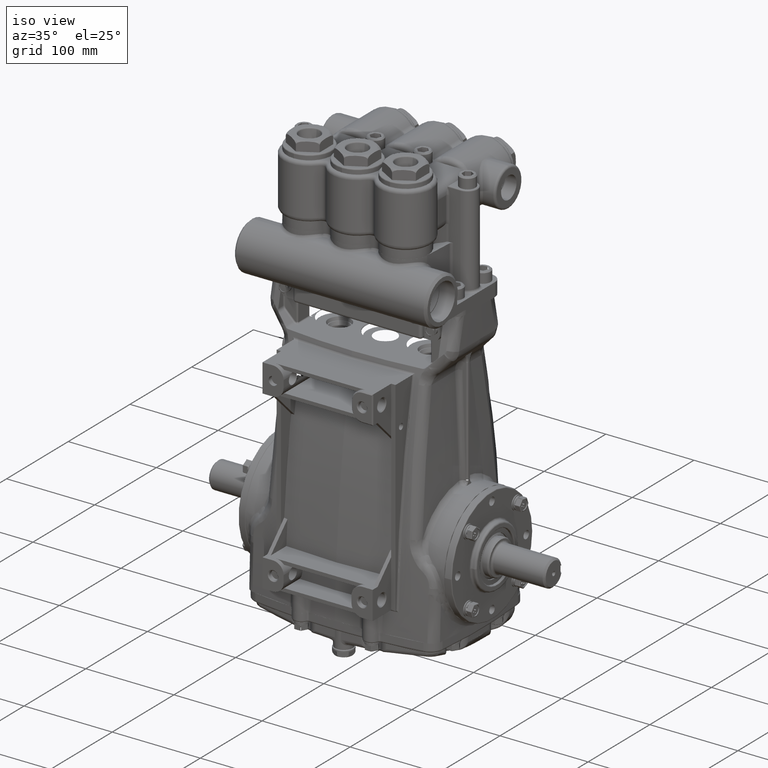
[diagram: clean part render]
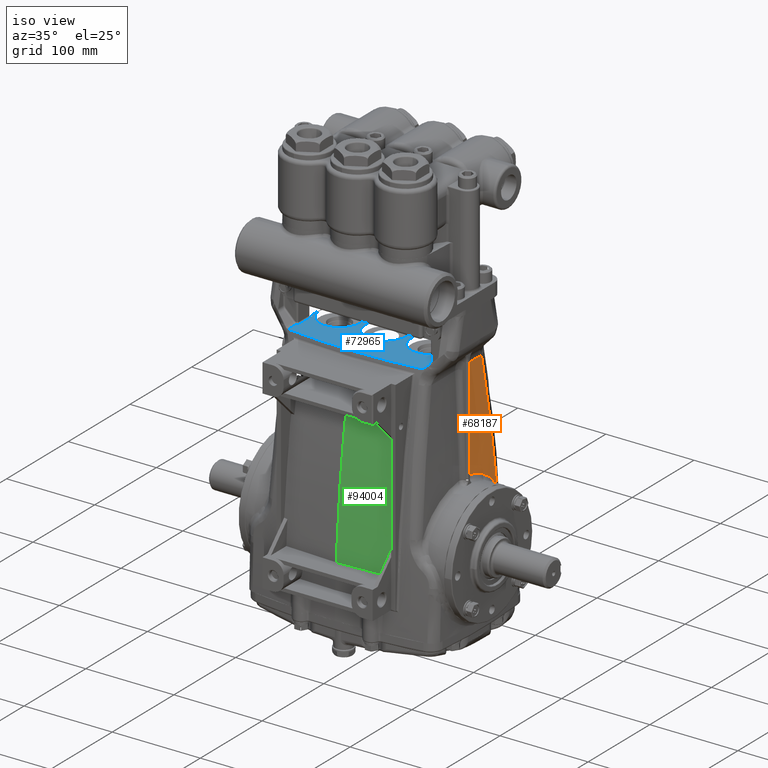
[diagram: same view with three faces highlighted in distinct colors, each labeled with its STEP entity id]
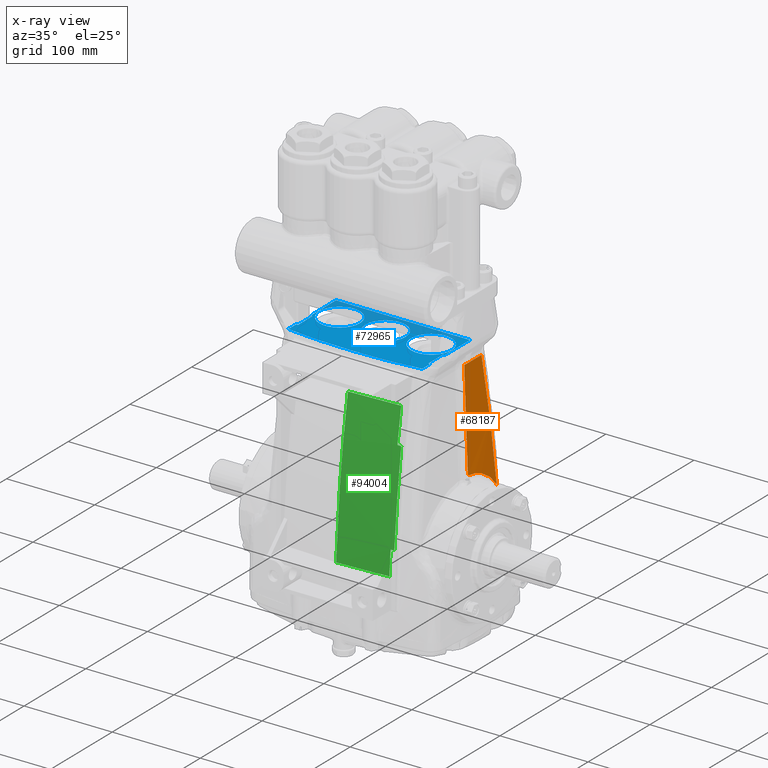
[diagram: x-ray of the same camera — body ghosted, the three highlighted faces saturated]
A machine part, iso view with three faces highlighted in distinct colors.
The next image is the same camera in x-ray (body ghosted, the three faces saturated) — at least one of them is partly hidden behind the body in this view.
Their STEP definitions:

[orange] entity #68187 — the highlighted face is a freeform B-spline surface patch.
#657 = CARTESIAN_POINT ( 'NONE',  ( 3.349694606955345488, 1.975843327882857769, 3.944405702662852509 ) ) ;
#806 = CARTESIAN_POINT ( 'NONE',  ( 3.318307231331997009, 0.2927187559611116319, 7.049093553887074037 ) ) ;
#1058 = VERTEX_POINT ( 'NONE', #60892 ) ;
#1593 = CARTESIAN_POINT ( 'NONE',  ( 3.281815810567933145, 1.266366989174206203, 7.147771232802056396 ) ) ;
#2824 = CARTESIAN_POINT ( 'NONE',  ( 3.490813648293963123, 0.2047844914236372216, 2.467191601049868233 ) ) ;
#3028 = CARTESIAN_POINT ( 'NONE',  ( 3.269692321802373680, 1.460513298219533684, 7.135318008206841256 ) ) ;
#3321 = CARTESIAN_POINT ( 'NONE',  ( 3.477706924474778916, 0.2927391590351144934, 2.768504190964697909 ) ) ;
#3326 = CARTESIAN_POINT ( 'NONE',  ( 3.582677165354325233, -0.2504330642496530035, 0.000000000000000000 ) ) ;
#3812 = CARTESIAN_POINT ( 'NONE',  ( 3.077482475587764554, -2.511274253650753963, 9.921259842519685179 ) ) ;
#4286 = CARTESIAN_POINT ( 'NONE',  ( 3.433988088125543126, 1.773042593103885567, 2.138417196117650576 ) ) ;
#4294 = CARTESIAN_POINT ( 'NONE',  ( 3.361718471530574792, -0.6071899308826437247, 5.774278215223129784 ) ) ;
#4780 = CARTESIAN_POINT ( 'NONE',  ( 3.427231623504842339, 1.914841288646969009, 2.010681869798234267 ) ) ;
#5284 = CARTESIAN_POINT ( 'NONE',  ( 3.437444456445687635, 1.698723534720699924, 2.198762342912546242 ) ) ;
#5494 = EDGE_LOOP ( 'NONE', ( #71016, #15726, #75249, #44194 ) ) ;
#8279 = CARTESIAN_POINT ( 'NONE',  ( 2.962623630077036108, 3.346456692913390096, 9.921259842519685179 ) ) ;
#8506 = CARTESIAN_POINT ( 'NONE',  ( 3.292354361583460065, 1.633310939118002514, 6.227655735173276419 ) ) ;
#9221 = CARTESIAN_POINT ( 'NONE',  ( 3.370182128241528741, 3.116621155005694366, 0.000000000000000000 ) ) ;
#10670 = CARTESIAN_POINT ( 'NONE',  ( 3.444332865596592796, 1.542042410792554552, 2.311344156697051400 ) ) ;
#10675 = CARTESIAN_POINT ( 'NONE',  ( 3.576859146580936066, -0.6046244503895895628, 0.000000000000000000 ) ) ;
#11182 = CARTESIAN_POINT ( 'NONE',  ( 3.490813648293961791, -0.2504405389293088424, 2.467191601049866012 ) ) ;
#11670 = CARTESIAN_POINT ( 'NONE',  ( 3.118770955066280326, -3.346456692913386544, 5.774278215223096922 ) ) ;
#12159 = CARTESIAN_POINT ( 'NONE',  ( 3.109258477031473955, -2.508475066898988803, 9.081364829396324723 ) ) ;
#12660 = CARTESIAN_POINT ( 'NONE',  ( 3.331099628569671012, 1.345986631178405224, 5.774278215223075605 ) ) ;
#12920 = CARTESIAN_POINT ( 'NONE',  ( 3.412023746535997937, 2.228146809416287066, 1.648877996829962944 ) ) ;
#15726 = ORIENTED_EDGE ( 'NONE', *, *, #17676, .T. ) ;
#15902 = CARTESIAN_POINT ( 'NONE',  ( 3.412023746535997937, 2.228146809416287066, 1.648877996829962944 ) ) ;
#16149 = CARTESIAN_POINT ( 'NONE',  ( 3.431648744459313782, 2.652526038801615194, 0.000000000000000000 ) ) ;
#17676 = EDGE_CURVE ( 'NONE', #1058, #26330, #38402, .T. ) ;
#18071 = CARTESIAN_POINT ( 'NONE',  ( 3.582677165354324789, 0.2047781824377178650, 0.000000000000000000 ) ) ;
#18565 = CARTESIAN_POINT ( 'NONE',  ( 3.238563372422959219, -0.6088273537724060436, 9.081364829396299854 ) ) ;
#19060 = CARTESIAN_POINT ( 'NONE',  ( 3.304246077622467581, -1.737775380214960919, 5.774278215223091593 ) ) ;
#19555 = CARTESIAN_POINT ( 'NONE',  ( 3.213224828743415085, 2.668767787971791261, 5.774278215223104915 ) ) ;
#20031 = CARTESIAN_POINT ( 'NONE',  ( 3.088002546773583656, 2.678613266805366599, 9.081364829396360250 ) ) ;
#21480 = CARTESIAN_POINT ( 'NONE',  ( 3.328073829250098647, 0.2927196410302269070, 6.786808136390652280 ) ) ;
#21807 = CARTESIAN_POINT ( 'NONE',  ( 3.269692321802373680, 1.460513298219533684, 7.135318008206841256 ) ) ;
#23502 = CARTESIAN_POINT ( 'NONE',  ( 3.152032960981228538, 3.124122137602491467, 5.774278215223089816 ) ) ;
#25158 = CARTESIAN_POINT ( 'NONE',  ( 3.291528827503460430, 1.071831288738920085, 7.157747510188548823 ) ) ;
#25456 = CARTESIAN_POINT ( 'NONE',  ( 3.403341269119732893, 2.024586169240023104, 2.467191601049906868 ) ) ;
#25933 = CARTESIAN_POINT ( 'NONE',  ( 3.183714716260146016, -1.187087684709286384, 9.921259842519649652 ) ) ;
#26330 = VERTEX_POINT ( 'NONE', #62928 ) ;
#26416 = CARTESIAN_POINT ( 'NONE',  ( 3.576220235460202623, 0.6835134000462050885, 0.000000000000000000 ) ) ;
#26915 = CARTESIAN_POINT ( 'NONE',  ( 3.476855029519029916, 0.3884509603138865952, 2.758237625161902962 ) ) ;
#26923 = CARTESIAN_POINT ( 'NONE',  ( 3.359373924467381478, -2.487234547113272409, 2.467191601049866012 ) ) ;
#27409 = CARTESIAN_POINT ( 'NONE',  ( 3.338676521992537616, -1.180206620310735088, 5.774278215223129784 ) ) ;
#27877 = CARTESIAN_POINT ( 'NONE',  ( 3.412023746535997937, 2.228146809416287066, 1.648877996829962944 ) ) ;
#27950 = VERTEX_POINT ( 'NONE', #92151 ) ;
#29649 = CARTESIAN_POINT ( 'NONE',  ( 3.361618648533276410, 2.034251877551805698, 3.486079300572620276 ) ) ;
#30768 = CARTESIAN_POINT ( 'NONE',  ( 3.447362342897620557, 0.2927343330170829594, 3.583368001503166589 ) ) ;
#31342 = CARTESIAN_POINT ( 'NONE',  ( 3.336131691620399131, 3.346456692913390540, 0.000000000000000000 ) ) ;
#32323 = FACE_OUTER_BOUND ( 'NONE', #5494, .T. ) ;
#32801 = CARTESIAN_POINT ( 'NONE',  ( 3.007765121776432959, -3.046796509488089999, 9.921259842519685179 ) ) ;
#33311 = CARTESIAN_POINT ( 'NONE',  ( 3.484935403604872750, -0.6057206102366218259, 2.467191601049883332 ) ) ;
#33787 = CARTESIAN_POINT ( 'NONE',  ( 3.289826261678808539, -3.033423029685906602, 2.467191601049866012 ) ) ;
#34266 = CARTESIAN_POINT ( 'NONE',  ( 3.148527226247458621, -1.749494867770716278, 9.921259842519683403 ) ) ;
#34776 = CARTESIAN_POINT ( 'NONE',  ( 3.462199748655711229, -1.175317486001221434, 2.467191601049883332 ) ) ;
#35258 = CARTESIAN_POINT ( 'NONE',  ( 3.463023286000174394, 1.037108040680475796, 2.582588093994256706 ) ) ;
#36698 = CARTESIAN_POINT ( 'NONE',  ( 3.477706924474778916, 0.2927391590351144934, 2.768504190964697909 ) ) ;
#38237 = CARTESIAN_POINT ( 'NONE',  ( 3.276972938593945894, 3.119826120297053418, 2.467191601049866012 ) ) ;
#38402 = B_SPLINE_CURVE_WITH_KNOTS ( 'NONE', 3,
 ( #83321, #806, #44993, #21480, #81881, #89238, #51904, #67619, #30768, #36698 ),
 .UNSPECIFIED., .F., .F.,
 ( 4, 3, 3, 4 ),
 ( 0.000000000000000000, 0.01000000000000030378, 0.05000000000002784856, 0.1121356603331099822 ),
 .UNSPECIFIED. ) ;
#40630 = CARTESIAN_POINT ( 'NONE',  ( 3.361089901118596845, 0.6863738808403515579, 5.774278215223060506 ) ) ;
#41131 = CARTESIAN_POINT ( 'NONE',  ( 3.470213245614027109, 0.7650157390332990026, 2.675867407756602478 ) ) ;
#41139 = CARTESIAN_POINT ( 'NONE',  ( 3.367677444574750822, -0.2504505581807623948, 5.774278215223089816 ) ) ;
#41614 = CARTESIAN_POINT ( 'NONE',  ( 2.994248404758402149, -3.346456692913386544, 9.081364829396326499 ) ) ;
#42604 = CARTESIAN_POINT ( 'NONE',  ( 3.547013876441738489, 1.335291830376295064, 0.000000000000000000 ) ) ;
#43141 = EDGE_CURVE ( 'NONE', #43580, #26330, #57675, .T. ) ;
#43580 = VERTEX_POINT ( 'NONE', #12920 ) ;
#44194 = ORIENTED_EDGE ( 'NONE', *, *, #52225, .F. ) ;
#44379 = CARTESIAN_POINT ( 'NONE',  ( 3.398877834969281864, 2.186773139856743153, 2.108903812612397566 ) ) ;
#44993 = CARTESIAN_POINT ( 'NONE',  ( 3.323190520193768815, 0.2927191873903027264, 6.917950844762834173 ) ) ;
#47990 = CARTESIAN_POINT ( 'NONE',  ( 3.475593993287876771, 0.4834058381449323760, 2.742974295274423380 ) ) ;
#47995 = CARTESIAN_POINT ( 'NONE',  ( 3.244541240855531861, -0.2504609453016973797, 9.081364829396326499 ) ) ;
#48483 = CARTESIAN_POINT ( 'NONE',  ( 3.520889234658918898, -1.723196813737145172, 0.000000000000000000 ) ) ;
#48995 = CARTESIAN_POINT ( 'NONE',  ( 3.383163826581795597, -3.028996562869355369, 0.000000000000000000 ) ) ;
#49477 = CARTESIAN_POINT ( 'NONE',  ( 3.447712467600018371, 1.461303277406913459, 2.363930898049619422 ) ) ;
#49485 = CARTESIAN_POINT ( 'NONE',  ( 3.213268554196682558, -0.2504635833006649825, 9.921259842519685179 ) ) ;
#49960 = CARTESIAN_POINT ( 'NONE',  ( 3.423931368744911552, 1.982320691899027931, 1.943291457284399115 ) ) ;
#49966 = CARTESIAN_POINT ( 'NONE',  ( 3.122716302038380576, 2.047084650748415058, 9.921259842519647876 ) ) ;
#51904 = CARTESIAN_POINT ( 'NONE',  ( 3.386674433925234595, 0.2927260709607487077, 5.213095669291894829 ) ) ;
#52181 = B_SPLINE_SURFACE_WITH_KNOTS ( 'NONE', 3, 3, ( 
 ( #31342, #53456, #62264, #76065, #8279 ),
 ( #9221, #38237, #23502, #61304, #83430 ),
 ( #16149, #93191, #19555, #20031, #71592 ),
 ( #64736, #25456, #64210, #78480, #49966 ),
 ( #42604, #70609, #12660, #55392, #93673 ),
 ( #26416, #71104, #40630, #86831, #77984 ),
 ( #18071, #2824, #78976, #85364, #94677 ),
 ( #3326, #11182, #41139, #47995, #49485 ),
 ( #10675, #33311, #4294, #18565, #63242 ),
 ( #79934, #34776, #27409, #79459, #25933 ),
 ( #48483, #55875, #19060, #85843, #34266 ),
 ( #94174, #26923, #57359, #12159, #3812 ),
 ( #48995, #33787, #87318, #63727, #32801 ),
 ( #56361, #86334, #11670, #41614, #56876 ) ),
 .UNSPECIFIED., .F., .F., .F.,
 ( 4, 1, 1, 1, 1, 2, 1, 1, 1, 1, 4 ),
 ( 4, 1, 4 ),
 ( 0.1586431789111423796, 0.1929639621870227195, 0.2287681097253262408, 0.2560747880780795960, 0.2983581534718249273, 0.3296355460450030028, 0.3678860930050805722, 0.3841297952030450213, 0.4172474699368756701, 0.4532222425079813766, 0.5006279131788632375 ),
 ( 0.000000000000000000, 0.7460317460317461569, 1.000000000000000000 ),
 .UNSPECIFIED. ) ;
#52225 = EDGE_CURVE ( 'NONE', #27950, #43580, #55260, .T. ) ;
#53456 = CARTESIAN_POINT ( 'NONE',  ( 3.243259376910911929, 3.346456692913388764, 2.467191601049868233 ) ) ;
#55062 = B_SPLINE_CURVE_WITH_KNOTS ( 'NONE', 3,
 ( #91969, #77247, #76268, #25158, #1593, #3028 ),
 .UNSPECIFIED., .F., .F.,
 ( 4, 2, 4 ),
 ( 0.004934148018106192940, 0.01978804455404170604, 0.03464194108997721566 ),
 .UNSPECIFIED. ) ;
#55260 = B_SPLINE_CURVE_WITH_KNOTS ( 'NONE', 3,
 ( #21807, #8506, #81727, #657, #29649, #90055, #44379, #15902 ),
 .UNSPECIFIED., .F., .F.,
 ( 4, 2, 2, 4 ),
 ( 8.441528768080324345E-17, 0.07039193455788995968, 0.1055879018368349187, 0.1407838691157798916 ),
 .UNSPECIFIED. ) ;
#55392 = CARTESIAN_POINT ( 'NONE',  ( 3.207397325007263156, 1.352893229288899324, 9.081364829396356697 ) ) ;
#55875 = CARTESIAN_POINT ( 'NONE',  ( 3.428323522106980548, -1.729425837595848225, 2.467191601049866900 ) ) ;
#56353 = CARTESIAN_POINT ( 'NONE',  ( 3.442610063453559022, 1.581952432225586680, 2.283835229760922125 ) ) ;
#56361 = CARTESIAN_POINT ( 'NONE',  ( 3.336131691620401796, -3.346456692913386544, 0.000000000000000000 ) ) ;
#56876 = CARTESIAN_POINT ( 'NONE',  ( 2.962623630077036108, -3.346456692913386100, 9.921259842519685179 ) ) ;
#57359 = CARTESIAN_POINT ( 'NONE',  ( 3.234376482716079693, -2.497453269063911740, 5.774278215223089816 ) ) ;
#57675 = B_SPLINE_CURVE_WITH_KNOTS ( 'NONE', 3,
 ( #27877, #72583, #87790, #49960, #4780, #4286, #5284, #56353, #10670, #49477, #57823, #78970, #64203, #35258, #79928, #93666, #41131, #71098, #63236, #47990, #26915, #3321 ),
 .UNSPECIFIED., .F., .F.,
 ( 4, 2, 2, 2, 2, 2, 2, 2, 2, 2, 4 ),
 ( 9.813077866773594792E-18, 0.007270669729715710169, 0.01454133945943141167, 0.02181200918914711143, 0.02544734405400496044, 0.02908267891886281292, 0.03635334864857851789, 0.04362401837829423673, 0.04725935324315208574, 0.05089468810800994863, 0.05816535783772566054 ),
 .UNSPECIFIED. ) ;
#57823 = CARTESIAN_POINT ( 'NONE',  ( 3.449372806653788537, 1.420399891638339573, 2.389070443333108251 ) ) ;
#60892 = CARTESIAN_POINT ( 'NONE',  ( 3.313423963808419082, 0.2927183479872371707, 7.180236263805937824 ) ) ;
#61304 = CARTESIAN_POINT ( 'NONE',  ( 3.027047486387744346, 3.128417886226819267, 9.081364829396330052 ) ) ;
#62264 = CARTESIAN_POINT ( 'NONE',  ( 3.118770955066280326, 3.346456692913385655, 5.774278215223095145 ) ) ;
#62928 = CARTESIAN_POINT ( 'NONE',  ( 3.477706924474778916, 0.2927391590351144934, 2.768504190964697909 ) ) ;
#63236 = CARTESIAN_POINT ( 'NONE',  ( 3.473135159087525459, 0.6247011727322953067, 2.712569757845848084 ) ) ;
#63242 = CARTESIAN_POINT ( 'NONE',  ( 3.207285886935310693, -0.6092432072047266889, 9.921259842519644323 ) ) ;
#63727 = CARTESIAN_POINT ( 'NONE',  ( 3.039552278195602586, -3.045289647581233439, 9.081364829396326499 ) ) ;
#64203 = CARTESIAN_POINT ( 'NONE',  ( 3.457319253985625451, 1.211163671208432158, 2.504574368776081084 ) ) ;
#64210 = CARTESIAN_POINT ( 'NONE',  ( 3.278895081363039754, 2.034007160076365839, 5.774278215223185740 ) ) ;
#64736 = CARTESIAN_POINT ( 'NONE',  ( 3.496182075858852656, 2.017557810997037571, 0.000000000000000000 ) ) ;
#67619 = CARTESIAN_POINT ( 'NONE',  ( 3.417018087079791933, 0.2927298696226943719, 4.398231824175141469 ) ) ;
#68187 = ADVANCED_FACE ( 'NONE', ( #32323 ), #52181, .F. ) ;
#70609 = CARTESIAN_POINT ( 'NONE',  ( 3.454759606896400381, 1.339861427082650991, 2.467191601049859795 ) ) ;
#71016 = ORIENTED_EDGE ( 'NONE', *, *, #88141, .F. ) ;
#71098 = CARTESIAN_POINT ( 'NONE',  ( 3.472220718430306441, 0.6716334063986347802, 2.701174340641883997 ) ) ;
#71104 = CARTESIAN_POINT ( 'NONE',  ( 3.484300910786971794, 0.6847356054764313082, 2.467191601049853578 ) ) ;
#71592 = CARTESIAN_POINT ( 'NONE',  ( 3.056200062463784839, 2.681113705874210940, 9.921259842519724259 ) ) ;
#72583 = CARTESIAN_POINT ( 'NONE',  ( 3.414713312866757278, 2.171058895739299555, 1.726990411664675484 ) ) ;
#75249 = ORIENTED_EDGE ( 'NONE', *, *, #43141, .F. ) ;
#76065 = CARTESIAN_POINT ( 'NONE',  ( 2.994248404758402149, 3.346456692913390096, 9.081364829396326499 ) ) ;
#76268 = CARTESIAN_POINT ( 'NONE',  ( 3.306111735994824663, 0.6824548773842041838, 7.172726748642133110 ) ) ;
#77247 = CARTESIAN_POINT ( 'NONE',  ( 3.310983054772468126, 0.4876467954302492469, 7.177729713678575152 ) ) ;
#77984 = CARTESIAN_POINT ( 'NONE',  ( 3.206671794739125225, 0.6886280765714566376, 9.921259842519729588 ) ) ;
#78480 = CARTESIAN_POINT ( 'NONE',  ( 3.154347447218058598, 2.044436045042683947, 9.081364829396314065 ) ) ;
#78970 = CARTESIAN_POINT ( 'NONE',  ( 3.454235604052612096, 1.296115292389044882, 2.461088219710865665 ) ) ;
#78976 = CARTESIAN_POINT ( 'NONE',  ( 3.367677444574754375, 0.2047929481494440151, 5.774278215223095145 ) ) ;
#79459 = CARTESIAN_POINT ( 'NONE',  ( 3.215099385775566976, -1.185694051413377359, 9.081364829396305183 ) ) ;
#79928 = CARTESIAN_POINT ( 'NONE',  ( 3.465643896110101707, 0.9480041649882693378, 2.617115943367958053 ) ) ;
#79934 = CARTESIAN_POINT ( 'NONE',  ( 3.554351997118713413, -1.171670036595711117, 0.000000000000000000 ) ) ;
#81727 = CARTESIAN_POINT ( 'NONE',  ( 3.314677885994496087, 1.783796561539602976, 5.316465458283545331 ) ) ;
#81881 = CARTESIAN_POINT ( 'NONE',  ( 3.347607065475425081, 0.2927214555899236292, 6.262237302901752400 ) ) ;
#83321 = CARTESIAN_POINT ( 'NONE',  ( 3.313423963808419082, 0.2927183479872371707, 7.180236263805937824 ) ) ;
#83430 = CARTESIAN_POINT ( 'NONE',  ( 2.995305143633843148, 3.129508870004426235, 9.921259842519690508 ) ) ;
#85364 = CARTESIAN_POINT ( 'NONE',  ( 3.244541240855535857, 0.2048016856631995064, 9.081364829396326499 ) ) ;
#85843 = CARTESIAN_POINT ( 'NONE',  ( 3.180065221462650360, -1.747121300670816835, 9.081364829396324723 ) ) ;
#86334 = CARTESIAN_POINT ( 'NONE',  ( 3.243259376910913705, -3.346456692913386544, 2.467191601049869121 ) ) ;
#86831 = CARTESIAN_POINT ( 'NONE',  ( 3.237946347929904878, 0.6881715306006001009, 9.081364829396353144 ) ) ;
#87318 = CARTESIAN_POINT ( 'NONE',  ( 3.164714206596082491, -3.039356378822984706, 5.774278215223089816 ) ) ;
#87790 = CARTESIAN_POINT ( 'NONE',  ( 3.417672550041459090, 2.110429115021122737, 1.801445320440802744 ) ) ;
#88141 = EDGE_CURVE ( 'NONE', #1058, #27950, #55062, .T. ) ;
#89238 = CARTESIAN_POINT ( 'NONE',  ( 3.367140624842383634, 0.2927236255618101413, 5.737666481446650479 ) ) ;
#90055 = CARTESIAN_POINT ( 'NONE',  ( 3.386209788244205487, 2.139713064070962734, 2.568349735116830068 ) ) ;
#91969 = CARTESIAN_POINT ( 'NONE',  ( 3.313423963808419082, 0.2927183479872371707, 7.180236263805937824 ) ) ;
#92151 = CARTESIAN_POINT ( 'NONE',  ( 3.269692321802373680, 1.460513298219533684, 7.135318008206841256 ) ) ;
#93191 = CARTESIAN_POINT ( 'NONE',  ( 3.338322162289793393, 2.659465695265236018, 2.467191601049872673 ) ) ;
#93666 = CARTESIAN_POINT ( 'NONE',  ( 3.469126847361452715, 0.8111619379403480767, 2.662039753391358676 ) ) ;
#93673 = CARTESIAN_POINT ( 'NONE',  ( 3.175980866959666749, 1.354647285951881885, 9.921259842519729588 ) ) ;
#94174 = CARTESIAN_POINT ( 'NONE',  ( 3.452625984186607155, -2.479611056134223723, 0.000000000000000000 ) ) ;
#94677 = CARTESIAN_POINT ( 'NONE',  ( 3.213268554196686555, 0.2048039047143119795, 9.921259842519685179 ) ) ;

[blue] entity #72965 — the highlighted planar face has unit normal (0, 0, 1).
#70 = CARTESIAN_POINT ( 'NONE',  ( -2.995267314299841388, 0.8858267716535432879, 7.795279527559055843 ) ) ;
#1165 = ORIENTED_EDGE ( 'NONE', *, *, #7901, .T. ) ;
#1412 = CARTESIAN_POINT ( 'NONE',  ( 2.995267314299840500, 0.8858267716535432879, 7.795279527559055843 ) ) ;
#1473 = VERTEX_POINT ( 'NONE', #64045 ) ;
#1566 = CARTESIAN_POINT ( 'NONE',  ( 1.300353899980418726, -2.079264159697176151, 7.795279527559004329 ) ) ;
#1693 = EDGE_LOOP ( 'NONE', ( #22190, #1165, #34597, #26158, #30923, #64264, #82416, #57336, #13673, #12543, #34409, #84320, #72648 ) ) ;
#1896 = EDGE_CURVE ( 'NONE', #35369, #83401, #33634, .T. ) ;
#2712 = CIRCLE ( 'NONE', #27860, 0.9055118110236217710 ) ;
#3016 = DIRECTION ( 'NONE',  ( 0.000000000000000000, 0.000000000000000000, 1.000000000000000000 ) ) ;
#3090 = CARTESIAN_POINT ( 'NONE',  ( 2.995267314299840500, -1.924090953648351920, 7.795279527559055843 ) ) ;
#3817 = AXIS2_PLACEMENT_3D ( 'NONE', #64421, #3016, #64921 ) ;
#3999 = VERTEX_POINT ( 'NONE', #59151 ) ;
#4067 = LINE ( 'NONE', #41377, #83428 ) ;
#4136 = DIRECTION ( 'NONE',  ( -1.051346764723242652E-16, 0.000000000000000000, 1.000000000000000000 ) ) ;
#4227 = CARTESIAN_POINT ( 'NONE',  ( -3.740157480314960647, -0.4921259842519689620, 7.795279527559055843 ) ) ;
#5605 = ORIENTED_EDGE ( 'NONE', *, *, #32532, .F. ) ;
#6123 = EDGE_CURVE ( 'NONE', #28770, #83045, #2712, .T. ) ;
#6310 = B_SPLINE_CURVE_WITH_KNOTS ( 'NONE', 3,
 ( #9405, #38401, #25128, #45275, #17276, #39371, #1566, #31042, #90951, #54586, #53636, #69345, #8447 ),
 .UNSPECIFIED., .F., .F.,
 ( 4, 1, 1, 1, 1, 1, 1, 1, 1, 1, 4 ),
 ( 0.01705626432255864799, 0.02248800266875476683, 0.03955954306842567048, 0.04920069791684063276, 0.05733757252449689368, 0.05903689102475136868, 0.06795898995396967845, 0.07803381234323830684, 0.08182793238196485464, 0.08760719812659660544, 0.09328233221348881943 ),
 .UNSPECIFIED. ) ;
#7311 = AXIS2_PLACEMENT_3D ( 'NONE', #56439, #21427, #93269 ) ;
#7794 = CARTESIAN_POINT ( 'NONE',  ( -2.913385826771653697, 0.8858267716535432879, 7.795279527559055843 ) ) ;
#7901 = EDGE_CURVE ( 'NONE', #3999, #78525, #4067, .T. ) ;
#7984 = DIRECTION ( 'NONE',  ( 0.000000000000000000, -1.000000000000000000, 0.000000000000000000 ) ) ;
#8069 = CIRCLE ( 'NONE', #84942, 0.9055118110236217710 ) ;
#8278 = EDGE_LOOP ( 'NONE', ( #26581, #33848 ) ) ;
#8447 = CARTESIAN_POINT ( 'NONE',  ( 1.404577764583735402E-17, -2.114775635248775210, 7.795279527559055843 ) ) ;
#8878 = CARTESIAN_POINT ( 'NONE',  ( -1.791694926762982032, -2.047537429967021705, 7.795279527559021204 ) ) ;
#8883 = VERTEX_POINT ( 'NONE', #23290 ) ;
#9321 = CARTESIAN_POINT ( 'NONE',  ( 1.141732283464566233, 1.108932140960201435E-16, 7.795279527559055843 ) ) ;
#9381 = VECTOR ( 'NONE', #38362, 39.37007874015748143 ) ;
#9405 = CARTESIAN_POINT ( 'NONE',  ( 2.995267314299840500, -1.924090953648351920, 7.795279527559055843 ) ) ;
#9859 = CARTESIAN_POINT ( 'NONE',  ( -2.926178195007508975, -1.932925588908157799, 7.795279527559078048 ) ) ;
#10451 = CARTESIAN_POINT ( 'NONE',  ( 2.913385826771653697, -0.4921259842519689065, 7.795279527559055843 ) ) ;
#11111 = LINE ( 'NONE', #4227, #66345 ) ;
#11345 = CARTESIAN_POINT ( 'NONE',  ( -2.913385826771653697, -0.4921259842519689620, 7.795279527559055843 ) ) ;
#11969 = CARTESIAN_POINT ( 'NONE',  ( 1.404577764583735402E-17, -2.114775635248775210, 7.795279527559055843 ) ) ;
#12543 = ORIENTED_EDGE ( 'NONE', *, *, #38072, .T. ) ;
#13139 = VERTEX_POINT ( 'NONE', #10451 ) ;
#13673 = ORIENTED_EDGE ( 'NONE', *, *, #49709, .T. ) ;
#15065 = VECTOR ( 'NONE', #38737, 39.37007874015748143 ) ;
#15197 = LINE ( 'NONE', #7794, #82127 ) ;
#15801 = CARTESIAN_POINT ( 'NONE',  ( 2.913385826771652809, 0.8858267716535432879, 7.795279527559055843 ) ) ;
#17228 = CARTESIAN_POINT ( 'NONE',  ( 1.404577764583735402E-17, -2.114775635248775210, 7.795279527559055843 ) ) ;
#17276 = CARTESIAN_POINT ( 'NONE',  ( 1.791694926762982032, -2.047537429967021705, 7.795279527559021204 ) ) ;
#18760 = VECTOR ( 'NONE', #73130, 39.37007874015748143 ) ;
#21427 = DIRECTION ( 'NONE',  ( 0.000000000000000000, 0.000000000000000000, 1.000000000000000000 ) ) ;
#21690 = VERTEX_POINT ( 'NONE', #41903 ) ;
#21884 = EDGE_CURVE ( 'NONE', #96418, #81124, #6310, .T. ) ;
#22190 = ORIENTED_EDGE ( 'NONE', *, *, #37377, .T. ) ;
#23290 = CARTESIAN_POINT ( 'NONE',  ( 2.995267314299839168, -0.4921259842519689620, 7.795279527559055843 ) ) ;
#23326 = LINE ( 'NONE', #59674, #59636 ) ;
#23407 = EDGE_CURVE ( 'NONE', #83045, #28770, #68942, .T. ) ;
#24600 = CARTESIAN_POINT ( 'NONE',  ( -0.08316610338612535902, -2.114775635248781871, 7.795279527559023869 ) ) ;
#25128 = CARTESIAN_POINT ( 'NONE',  ( 2.640519679465509029, -1.968168538549597057, 7.795279527559099364 ) ) ;
#25921 = CARTESIAN_POINT ( 'NONE',  ( -2.995267314299838723, 1.122047244094488194, 7.795279527559055843 ) ) ;
#26015 = FACE_BOUND ( 'NONE', #94897, .T. ) ;
#26158 = ORIENTED_EDGE ( 'NONE', *, *, #35645, .T. ) ;
#26581 = ORIENTED_EDGE ( 'NONE', *, *, #87984, .F. ) ;
#27343 = DIRECTION ( 'NONE',  ( -1.051346764723242652E-16, 0.000000000000000000, 1.000000000000000000 ) ) ;
#27860 = AXIS2_PLACEMENT_3D ( 'NONE', #48462, #33763, #93651 ) ;
#28582 = DIRECTION ( 'NONE',  ( -1.000000000000000000, 0.000000000000000000, 0.000000000000000000 ) ) ;
#28770 = VERTEX_POINT ( 'NONE', #81915 ) ;
#28911 = CARTESIAN_POINT ( 'NONE',  ( -2.995267314299841388, -1.417322834645669660, 7.795279527559055843 ) ) ;
#30923 = ORIENTED_EDGE ( 'NONE', *, *, #54286, .T. ) ;
#31042 = CARTESIAN_POINT ( 'NONE',  ( 1.031205350982012714, -2.093198511378523641, 7.795279527559025645 ) ) ;
#31481 = CARTESIAN_POINT ( 'NONE',  ( -2.640519679465509917, -1.968168538549596835, 7.795279527559099364 ) ) ;
#32254 = VERTEX_POINT ( 'NONE', #95006 ) ;
#32532 = EDGE_CURVE ( 'NONE', #83401, #35369, #40900, .T. ) ;
#33634 = CIRCLE ( 'NONE', #3817, 0.9055118110236217710 ) ;
#33763 = DIRECTION ( 'NONE',  ( -1.051346764723242652E-16, -0.000000000000000000, -1.000000000000000000 ) ) ;
#33848 = ORIENTED_EDGE ( 'NONE', *, *, #81696, .F. ) ;
#33943 = EDGE_CURVE ( 'NONE', #49892, #83989, #76566, .T. ) ;
#34409 = ORIENTED_EDGE ( 'NONE', *, *, #60469, .T. ) ;
#34597 = ORIENTED_EDGE ( 'NONE', *, *, #60510, .T. ) ;
#35369 = VERTEX_POINT ( 'NONE', #48408 ) ;
#35645 = EDGE_CURVE ( 'NONE', #13139, #8883, #23326, .T. ) ;
#36297 = EDGE_CURVE ( 'NONE', #32254, #81124, #40157, .T. ) ;
#37297 = CARTESIAN_POINT ( 'NONE',  ( -3.740157480314960647, 1.122047244094488194, 7.795279527559055843 ) ) ;
#37377 = EDGE_CURVE ( 'NONE', #96418, #3999, #60848, .T. ) ;
#37842 = CARTESIAN_POINT ( 'NONE',  ( -2.047244094488188004, 0.000000000000000000, 7.795279527559055843 ) ) ;
#38072 = EDGE_CURVE ( 'NONE', #21690, #76346, #45378, .T. ) ;
#38362 = DIRECTION ( 'NONE',  ( -0.000000000000000000, 1.000000000000000000, -0.000000000000000000 ) ) ;
#38401 = CARTESIAN_POINT ( 'NONE',  ( 2.926178195007507199, -1.932925588908157577, 7.795279527559076271 ) ) ;
#38737 = DIRECTION ( 'NONE',  ( 0.000000000000000000, 1.000000000000000000, 0.000000000000000000 ) ) ;
#38835 = CARTESIAN_POINT ( 'NONE',  ( -1.542271919458150453, -2.064636652693911945, 7.795279527559003441 ) ) ;
#39371 = CARTESIAN_POINT ( 'NONE',  ( 1.542271919458150453, -2.064636652693911945, 7.795279527559003441 ) ) ;
#39806 = CARTESIAN_POINT ( 'NONE',  ( -1.031205350982012714, -2.093198511378523641, 7.795279527559025645 ) ) ;
#40157 = B_SPLINE_CURVE_WITH_KNOTS ( 'NONE', 3,
 ( #62881, #9859, #31481, #46671, #8878, #38835, #69770, #39806, #68800, #54057, #77636, #24600, #17228 ),
 .UNSPECIFIED., .F., .F.,
 ( 4, 1, 1, 1, 1, 1, 1, 1, 1, 1, 4 ),
 ( 0.01705626432255860289, 0.02248800266875478418, 0.03955954306842568435, 0.04920069791684064664, 0.05733757252449690756, 0.05903689102475137562, 0.06795898995396967845, 0.07803381234323830684, 0.08182793238196484076, 0.08760719812659661931, 0.09328233221348881943 ),
 .UNSPECIFIED. ) ;
#40708 = PLANE ( 'NONE',  #7311 ) ;
#40900 = CIRCLE ( 'NONE', #66045, 0.9055118110236217710 ) ;
#41064 = DIRECTION ( 'NONE',  ( 1.000000000000000000, 0.000000000000000000, -0.000000000000000000 ) ) ;
#41377 = CARTESIAN_POINT ( 'NONE',  ( -3.740157480314960647, -1.417322834645669660, 7.795279527559055843 ) ) ;
#41903 = CARTESIAN_POINT ( 'NONE',  ( -2.913385826771653697, -1.417322834645669660, 7.795279527559055843 ) ) ;
#42033 = CARTESIAN_POINT ( 'NONE',  ( 2.047244094488188004, 0.000000000000000000, 7.795279527559055843 ) ) ;
#42339 = VECTOR ( 'NONE', #66420, 39.37007874015748143 ) ;
#42667 = LINE ( 'NONE', #66239, #18760 ) ;
#43780 = LINE ( 'NONE', #70, #42339 ) ;
#45275 = CARTESIAN_POINT ( 'NONE',  ( 2.234388800941571329, -2.010757816649459517, 7.795279527559080712 ) ) ;
#45378 = LINE ( 'NONE', #62066, #66870 ) ;
#45875 = DIRECTION ( 'NONE',  ( -1.000000000000000000, 0.000000000000000000, 0.000000000000000000 ) ) ;
#46671 = CARTESIAN_POINT ( 'NONE',  ( -2.234388800941571329, -2.010757816649459517, 7.795279527559080712 ) ) ;
#48408 = CARTESIAN_POINT ( 'NONE',  ( 0.9055118110236226592, 0.000000000000000000, 7.795279527559055843 ) ) ;
#48462 = CARTESIAN_POINT ( 'NONE',  ( -2.047244094488188004, 0.000000000000000000, 7.795279527559055843 ) ) ;
#49568 = FACE_OUTER_BOUND ( 'NONE', #1693, .T. ) ;
#49709 = EDGE_CURVE ( 'NONE', #73576, #21690, #15197, .T. ) ;
#49892 = VERTEX_POINT ( 'NONE', #93264 ) ;
#50072 = CARTESIAN_POINT ( 'NONE',  ( 8.781031609803907450E-16, 0.000000000000000000, 7.795279527559055843 ) ) ;
#51944 = ORIENTED_EDGE ( 'NONE', *, *, #1896, .F. ) ;
#52703 = CARTESIAN_POINT ( 'NONE',  ( 2.913385826771653697, -1.417322834645669660, 7.795279527559055843 ) ) ;
#52790 = DIRECTION ( 'NONE',  ( 1.000000000000000000, -0.000000000000000000, -0.000000000000000000 ) ) ;
#53636 = CARTESIAN_POINT ( 'NONE',  ( 0.2477352088340169511, -2.113885777922728249, 7.795279527559047850 ) ) ;
#54057 = CARTESIAN_POINT ( 'NONE',  ( -0.4601036210045718611, -2.110556890750558523, 7.795279527559060284 ) ) ;
#54286 = EDGE_CURVE ( 'NONE', #8883, #49892, #42667, .T. ) ;
#54353 = AXIS2_PLACEMENT_3D ( 'NONE', #42033, #27343, #63666 ) ;
#54586 = CARTESIAN_POINT ( 'NONE',  ( 0.4601036210045718611, -2.110556890750558523, 7.795279527559060284 ) ) ;
#56439 = CARTESIAN_POINT ( 'NONE',  ( -3.740157480314960647, 0.8858267716535432879, 7.795279527559055843 ) ) ;
#57336 = ORIENTED_EDGE ( 'NONE', *, *, #66256, .T. ) ;
#58155 = DIRECTION ( 'NONE',  ( 1.000000000000000000, 0.000000000000000000, 0.000000000000000000 ) ) ;
#58157 = VECTOR ( 'NONE', #7984, 39.37007874015748143 ) ;
#58882 = DIRECTION ( 'NONE',  ( 1.000000000000000000, 0.000000000000000000, 0.000000000000000000 ) ) ;
#59151 = CARTESIAN_POINT ( 'NONE',  ( 2.995267314299840500, -1.417322834645669660, 7.795279527559055843 ) ) ;
#59359 = DIRECTION ( 'NONE',  ( 0.000000000000000000, 0.000000000000000000, 1.000000000000000000 ) ) ;
#59636 = VECTOR ( 'NONE', #52790, 39.37007874015748143 ) ;
#59674 = CARTESIAN_POINT ( 'NONE',  ( -3.740157480314960647, -0.4921259842519689620, 7.795279527559055843 ) ) ;
#60469 = EDGE_CURVE ( 'NONE', #76346, #32254, #43780, .T. ) ;
#60510 = EDGE_CURVE ( 'NONE', #78525, #13139, #75719, .T. ) ;
#60604 = CIRCLE ( 'NONE', #54353, 0.9055118110236217710 ) ;
#60848 = LINE ( 'NONE', #1412, #15065 ) ;
#61658 = CARTESIAN_POINT ( 'NONE',  ( -0.9055118110236209938, 1.108932140960201435E-16, 7.795279527559055843 ) ) ;
#61834 = EDGE_LOOP ( 'NONE', ( #91984, #69110 ) ) ;
#62066 = CARTESIAN_POINT ( 'NONE',  ( -3.740157480314960647, -1.417322834645669660, 7.795279527559055843 ) ) ;
#62881 = CARTESIAN_POINT ( 'NONE',  ( -2.995267314299842276, -1.924090953648352587, 7.795279527559054955 ) ) ;
#63324 = FACE_BOUND ( 'NONE', #61834, .T. ) ;
#63666 = DIRECTION ( 'NONE',  ( 1.000000000000000000, 0.000000000000000000, 0.000000000000000000 ) ) ;
#64045 = CARTESIAN_POINT ( 'NONE',  ( -2.995267314299838723, -0.4921259842519689620, 7.795279527559055843 ) ) ;
#64264 = ORIENTED_EDGE ( 'NONE', *, *, #33943, .T. ) ;
#64421 = CARTESIAN_POINT ( 'NONE',  ( 8.781031609803907450E-16, 0.000000000000000000, 7.795279527559055843 ) ) ;
#64921 = DIRECTION ( 'NONE',  ( 1.000000000000000000, 0.000000000000000000, 0.000000000000000000 ) ) ;
#66045 = AXIS2_PLACEMENT_3D ( 'NONE', #50072, #59359, #58882 ) ;
#66239 = CARTESIAN_POINT ( 'NONE',  ( 2.995267314299839168, 0.8858267716535432879, 7.795279527559055843 ) ) ;
#66256 = EDGE_CURVE ( 'NONE', #1473, #73576, #11111, .T. ) ;
#66345 = VECTOR ( 'NONE', #41064, 39.37007874015748143 ) ;
#66420 = DIRECTION ( 'NONE',  ( -0.000000000000000000, -1.000000000000000000, -0.000000000000000000 ) ) ;
#66870 = VECTOR ( 'NONE', #45875, 39.37007874015748143 ) ;
#67256 = DIRECTION ( 'NONE',  ( -1.000000000000000000, -0.000000000000000000, 0.000000000000000000 ) ) ;
#67453 = CARTESIAN_POINT ( 'NONE',  ( 2.952755905511809775, 0.000000000000000000, 7.795279527559055843 ) ) ;
#68800 = CARTESIAN_POINT ( 'NONE',  ( -0.7281053070544563077, -2.104114854293392955, 7.795279527559057620 ) ) ;
#68942 = CIRCLE ( 'NONE', #81511, 0.9055118110236217710 ) ;
#69110 = ORIENTED_EDGE ( 'NONE', *, *, #6123, .T. ) ;
#69345 = CARTESIAN_POINT ( 'NONE',  ( 0.08316610338612535902, -2.114775635248781871, 7.795279527559023869 ) ) ;
#69770 = CARTESIAN_POINT ( 'NONE',  ( -1.300353899980418726, -2.079264159697176151, 7.795279527559004329 ) ) ;
#71359 = DIRECTION ( 'NONE',  ( -1.000000000000000000, -0.000000000000000000, 0.000000000000000000 ) ) ;
#71920 = CARTESIAN_POINT ( 'NONE',  ( 2.047244094488188004, 0.000000000000000000, 7.795279527559055843 ) ) ;
#72648 = ORIENTED_EDGE ( 'NONE', *, *, #21884, .F. ) ;
#72965 = ADVANCED_FACE ( 'NONE', ( #49568, #63324, #26015, #94750 ), #40708, .T. ) ;
#73130 = DIRECTION ( 'NONE',  ( -0.000000000000000000, 1.000000000000000000, -0.000000000000000000 ) ) ;
#73576 = VERTEX_POINT ( 'NONE', #11345 ) ;
#73852 = LINE ( 'NONE', #80740, #58157 ) ;
#74712 = DIRECTION ( 'NONE',  ( -1.051346764723242652E-16, -0.000000000000000000, -1.000000000000000000 ) ) ;
#75719 = LINE ( 'NONE', #15801, #9381 ) ;
#76346 = VERTEX_POINT ( 'NONE', #28911 ) ;
#76566 = LINE ( 'NONE', #37297, #96021 ) ;
#77636 = CARTESIAN_POINT ( 'NONE',  ( -0.2477352088340169511, -2.113885777922728249, 7.795279527559047850 ) ) ;
#78525 = VERTEX_POINT ( 'NONE', #52703 ) ;
#78881 = VERTEX_POINT ( 'NONE', #9321 ) ;
#80740 = CARTESIAN_POINT ( 'NONE',  ( -2.995267314299838723, 0.8858267716535432879, 7.795279527559055843 ) ) ;
#81124 = VERTEX_POINT ( 'NONE', #11969 ) ;
#81511 = AXIS2_PLACEMENT_3D ( 'NONE', #37842, #74712, #28582 ) ;
#81696 = EDGE_CURVE ( 'NONE', #78881, #92063, #60604, .T. ) ;
#81915 = CARTESIAN_POINT ( 'NONE',  ( -1.141732283464566233, 1.108932140960201435E-16, 7.795279527559055843 ) ) ;
#82127 = VECTOR ( 'NONE', #84404, 39.37007874015748143 ) ;
#82416 = ORIENTED_EDGE ( 'NONE', *, *, #87183, .T. ) ;
#83045 = VERTEX_POINT ( 'NONE', #94142 ) ;
#83401 = VERTEX_POINT ( 'NONE', #61658 ) ;
#83428 = VECTOR ( 'NONE', #71359, 39.37007874015748143 ) ;
#83989 = VERTEX_POINT ( 'NONE', #25921 ) ;
#84320 = ORIENTED_EDGE ( 'NONE', *, *, #36297, .T. ) ;
#84404 = DIRECTION ( 'NONE',  ( 0.000000000000000000, -1.000000000000000000, 0.000000000000000000 ) ) ;
#84942 = AXIS2_PLACEMENT_3D ( 'NONE', #71920, #4136, #58155 ) ;
#87183 = EDGE_CURVE ( 'NONE', #83989, #1473, #73852, .T. ) ;
#87984 = EDGE_CURVE ( 'NONE', #92063, #78881, #8069, .T. ) ;
#90951 = CARTESIAN_POINT ( 'NONE',  ( 0.7281053070544563077, -2.104114854293392955, 7.795279527559057620 ) ) ;
#91984 = ORIENTED_EDGE ( 'NONE', *, *, #23407, .T. ) ;
#92063 = VERTEX_POINT ( 'NONE', #67453 ) ;
#93264 = CARTESIAN_POINT ( 'NONE',  ( 2.995267314299839168, 1.122047244094488194, 7.795279527559055843 ) ) ;
#93269 = DIRECTION ( 'NONE',  ( 1.000000000000000000, 0.000000000000000000, -0.000000000000000000 ) ) ;
#93651 = DIRECTION ( 'NONE',  ( -1.000000000000000000, 0.000000000000000000, 0.000000000000000000 ) ) ;
#94142 = CARTESIAN_POINT ( 'NONE',  ( -2.952755905511809775, 0.000000000000000000, 7.795279527559055843 ) ) ;
#94750 = FACE_BOUND ( 'NONE', #8278, .T. ) ;
#94897 = EDGE_LOOP ( 'NONE', ( #51944, #5605 ) ) ;
#95006 = CARTESIAN_POINT ( 'NONE',  ( -2.995267314299842276, -1.924090953648352587, 7.795279527559054955 ) ) ;
#96021 = VECTOR ( 'NONE', #67256, 39.37007874015748143 ) ;
#96418 = VERTEX_POINT ( 'NONE', #3090 ) ;

[green] entity #94004 — the highlighted face is a freeform B-spline surface patch.
#47 = CARTESIAN_POINT ( 'NONE',  ( -6.204764018750550392, 0.2987381226801666401, 18.18253429005138599 ) ) ;
#169 = CARTESIAN_POINT ( 'NONE',  ( 35.67690140758984541, 3.484698705692266696, 1.566656130829030769 ) ) ;
#518 = CARTESIAN_POINT ( 'NONE',  ( 2.460629921259843034, -2.599529490889348704, 4.079982486038520761 ) ) ;
#543 = CARTESIAN_POINT ( 'NONE',  ( -1.786651261856521788, -1.653543307086620118, 9.921259842519685179 ) ) ;
#648 = CARTESIAN_POINT ( 'NONE',  ( 60.51029767883075294, 10.91150826857076339, 14.05189706628435609 ) ) ;
#750 = CARTESIAN_POINT ( 'NONE',  ( 2.460515561828938047, -2.506053103184957553, 4.750152615045485582 ) ) ;
#1024 = CARTESIAN_POINT ( 'NONE',  ( -126.8748915097407206, -3.228346456692912092, -2.677165354330708791 ) ) ;
#1128 = CARTESIAN_POINT ( 'NONE',  ( 32.98867330568216261, 2.878567377491762613, -2.677165354330571123 ) ) ;
#1174 = CARTESIAN_POINT ( 'NONE',  ( 2.303149606299211616, -2.519994672581295170, 4.764089160771896481 ) ) ;
#1502 = CARTESIAN_POINT ( 'NONE',  ( -49.37548668979076183, -2.629684021970013497, 5.790622618753832995 ) ) ;
#1615 = CARTESIAN_POINT ( 'NONE',  ( 10.58819436826444260, 1.943729315085312104, 18.18253429005122968 ) ) ;
#1877 = CARTESIAN_POINT ( 'NONE',  ( -6.110739721206161446E-16, -3.019586185884665319, 1.863036771043387052 ) ) ;
#1986 = CARTESIAN_POINT ( 'NONE',  ( -330.8157608215982464, -2.629684021970013497, 5.790622618753832995 ) ) ;
#2099 = CARTESIAN_POINT ( 'NONE',  ( 15.02566726547656906, 0.8753424148805890592, 9.921259842519528860 ) ) ;
#2147 = CARTESIAN_POINT ( 'NONE',  ( 2.303149606299211616, -2.447991232690672092, 5.263677423089512253 ) ) ;
#2461 = CARTESIAN_POINT ( 'NONE',  ( -231.2943560864023880, -0.6774025922032267388, 14.05189706628553736 ) ) ;
#2574 = CARTESIAN_POINT ( 'NONE',  ( 3.668437111325606015, -2.942071359179118328, -2.677165354330714564 ) ) ;
#2893 = EDGE_CURVE ( 'NONE', #73018, #74181, #54556, .T. ) ;
#2940 = CARTESIAN_POINT ( 'NONE',  ( -53.20559966537515351, -3.228346456692912092, -2.677165354330708791 ) ) ;
#3045 = CARTESIAN_POINT ( 'NONE',  ( 17.32986278139745195, 4.262734306217753399, 22.31317151381684383 ) ) ;
#3552 = CARTESIAN_POINT ( 'NONE',  ( 3.964031650317979771, -1.318867081842717948, 9.921259842519674521 ) ) ;
#3922 = CARTESIAN_POINT ( 'NONE',  ( -801.8874653762661637, 1.274878837563560019, 22.31317151381723818 ) ) ;
#4037 = CARTESIAN_POINT ( 'NONE',  ( 2.674235088528118087, -3.007565668344890142, 1.566656130829055860 ) ) ;
#4523 = CARTESIAN_POINT ( 'NONE',  ( 3.275618926153061050, -3.000403615539101843, -2.677165354330710123 ) ) ;
#4709 = VERTEX_POINT ( 'NONE', #57144 ) ;
#4904 = CARTESIAN_POINT ( 'NONE',  ( -1397.326273321079498, -2.629684021970013497, 5.790622618753832995 ) ) ;
#5031 = CARTESIAN_POINT ( 'NONE',  ( 3.008782103149817644, -2.437527964115577817, 5.790622618753870299 ) ) ;
#5397 = CARTESIAN_POINT ( 'NONE',  ( -699.6654271613673473, -0.6774025922032267388, 14.05189706628553736 ) ) ;
#5510 = CARTESIAN_POINT ( 'NONE',  ( 1.778699838802215494, -2.563449299936535919, 5.790622618753828554 ) ) ;
#5624 = CARTESIAN_POINT ( 'NONE',  ( 1477.781864706674696, 292.2398714948351426, 9.921259842497420323 ) ) ;
#5983 = CARTESIAN_POINT ( 'NONE',  ( 3.185225467371541441, -1.438041772802635565, 9.921259842519724259 ) ) ;
#6091 = CARTESIAN_POINT ( 'NONE',  ( 1480.066864413114672, 291.1202145032710860, -2.677165354323549185 ) ) ;
#6304 = CARTESIAN_POINT ( 'NONE',  ( 2.303149606299212504, -2.284807564803296831, 6.259842519685038909 ) ) ;
#6440 = CARTESIAN_POINT ( 'NONE',  ( 2.460629921259843478, -2.945639392558654368, 0.7157764201855959518 ) ) ;
#6464 = CARTESIAN_POINT ( 'NONE',  ( -9.030287104777164231, -3.157679832960618604, 1.566656130829030769 ) ) ;
#6576 = CARTESIAN_POINT ( 'NONE',  ( 17.92700981874139288, -0.05087941255599976592, 1.566656130829030769 ) ) ;
#6815 = ORIENTED_EDGE ( 'NONE', *, *, #76312, .F. ) ;
#6937 = CARTESIAN_POINT ( 'NONE',  ( -1.927452967386684923, -0.6774025922032267388, 14.05189706628553736 ) ) ;
#7050 = CARTESIAN_POINT ( 'NONE',  ( 87.26385688000563334, 18.19279680936446297, 22.31317151381468022 ) ) ;
#7412 = CARTESIAN_POINT ( 'NONE',  ( -4.937548668979076183, -2.629684021970013497, 5.790622618753832995 ) ) ;
#7525 = CARTESIAN_POINT ( 'NONE',  ( 110.6877117574817788, 18.95400153129947185, 5.790622618752967909 ) ) ;
#7873 = CARTESIAN_POINT ( 'NONE',  ( 2.460629921259842590, -2.833807111802359113, 2.064005108334423078 ) ) ;
#7897 = CARTESIAN_POINT ( 'NONE',  ( 1.180200563993544227, 1.302704206283153976, 22.31317151381723818 ) ) ;
#8021 = CARTESIAN_POINT ( 'NONE',  ( 43.74158571331304302, 7.571370059854093171, 14.05189706628470958 ) ) ;
#8386 = CARTESIAN_POINT ( 'NONE',  ( -10.71990757113913517, -1.653543307086620118, 9.921259842519685179 ) ) ;
#8475 = CARTESIAN_POINT ( 'NONE',  ( 2.303149606302929975, -3.011664857657212924, -0.003170445989327458965 ) ) ;
#8495 = CARTESIAN_POINT ( 'NONE',  ( 30.04513443568984243, 6.795472943153519019, 22.31317151381645303 ) ) ;
#8865 = CARTESIAN_POINT ( 'NONE',  ( -45.15143552388582293, -3.157679832960618604, 1.566656130829030769 ) ) ;
#8966 = CARTESIAN_POINT ( 'NONE',  ( 6.733803069487127146, 2.152118775437947384, 22.31317151381717423 ) ) ;
#9136 = CARTESIAN_POINT ( 'NONE',  ( 1.739968930662633140, -3.080673250570038491, -0.3543307086614219670 ) ) ;
#9344 = CARTESIAN_POINT ( 'NONE',  ( -18.06057420955432846, -3.157679832960618604, 1.566656130829030769 ) ) ;
#9457 = CARTESIAN_POINT ( 'NONE',  ( 4.614591127105060586, 0.7538549543985912926, 18.18253429005138599 ) ) ;
#9842 = CARTESIAN_POINT ( 'NONE',  ( -197.5019467591631042, -2.629684021970013497, 5.790622618753832995 ) ) ;
#9949 = CARTESIAN_POINT ( 'NONE',  ( 4.432929156197262799, 1.693810654514742442, 22.31317151381724884 ) ) ;
#10314 = CARTESIAN_POINT ( 'NONE',  ( -302.5146180100349511, -3.157679832960618604, 1.566656130829030769 ) ) ;
#10425 = CARTESIAN_POINT ( 'NONE',  ( 5.965737897513490040, -2.504096434380863379, -2.677165354330702574 ) ) ;
#10591 = VERTEX_POINT ( 'NONE', #25109 ) ;
#10787 = CARTESIAN_POINT ( 'NONE',  ( -166.1585673526566325, -1.653543307086620118, 9.921259842519685179 ) ) ;
#10900 = CARTESIAN_POINT ( 'NONE',  ( 4.234949577557648226, -1.271671287195856426, 9.921259842519706496 ) ) ;
#10950 = B_SPLINE_CURVE_WITH_KNOTS ( 'NONE', 3,
 ( #83343, #68123, #53369, #9136, #89753, #23918, #52891, #68592, #61223, #53862, #97084, #75014 ),
 .UNSPECIFIED., .F., .F.,
 ( 4, 1, 1, 1, 1, 1, 1, 1, 1, 4 ),
 ( 0.004020411046487371021, 0.008566739183912366537, 0.01827091909264972128, 0.02646098515102389415, 0.02817141224279768458, 0.03715183570181115891, 0.04729251807349937192, 0.05111144060197644196, 0.05692848590496001754, 0.06264071883258112705 ),
 .UNSPECIFIED. ) ;
#11410 = CARTESIAN_POINT ( 'NONE',  ( 1.010540509219338690, -2.608973496351445931, 5.790622618753833883 ) ) ;
#11524 = CARTESIAN_POINT ( 'NONE',  ( 1288.857028210637736, 257.5365979997944805, 22.31317151377750818 ) ) ;
#11787 = CARTESIAN_POINT ( 'NONE',  ( -1489.756790630504156, -3.228346456692912092, -2.677165354330708791 ) ) ;
#11898 = CARTESIAN_POINT ( 'NONE',  ( 3.155094314444369274, -0.4660481602091839370, 14.05189706628559065 ) ) ;
#12387 = CARTESIAN_POINT ( 'NONE',  ( 2.246878270217475215, -0.5719395709258071614, 14.05189706628562085 ) ) ;
#12507 = CARTESIAN_POINT ( 'NONE',  ( 1151.738199203865406, 225.7208491890186224, -2.677165354325142577 ) ) ;
#12897 = CARTESIAN_POINT ( 'NONE',  ( 3.453412476792318220, 1.527876587523569585, 22.31317151381723107 ) ) ;
#13008 = CARTESIAN_POINT ( 'NONE',  ( 1586.463086540943095, 314.8640852617876931, 14.05189706625213830 ) ) ;
#13363 = CARTESIAN_POINT ( 'NONE',  ( 0.9257104818322371420, -3.211193352624858388, -2.677165354330704350 ) ) ;
#13691 = CARTESIAN_POINT ( 'NONE',  ( 0.08065113919264187137, -2.397353387820506665, 6.259842519685040685 ) ) ;
#13836 = CARTESIAN_POINT ( 'NONE',  ( 0.4750783999845856198, -1.649063539852281046, 9.921259842519726035 ) ) ;
#13948 = CARTESIAN_POINT ( 'NONE',  ( 68.19094939856702808, 14.39368885396081410, 22.31317151381527353 ) ) ;
#14333 = CARTESIAN_POINT ( 'NONE',  ( -3.573302523713044909, -1.653543307086620118, 9.921259842519685179 ) ) ;
#14444 = ORIENTED_EDGE ( 'NONE', *, *, #22638, .F. ) ;
#14448 = CARTESIAN_POINT ( 'NONE',  ( 301.9252752403165800, 56.51837047941625514, 1.566656130829030769 ) ) ;
#14660 = CARTESIAN_POINT ( 'NONE',  ( 0.4493508737501120676, -2.393322072566673064, 6.259842519685071771 ) ) ;
#14663 = CARTESIAN_POINT ( 'NONE',  ( 2.303149606299212504, -2.962880837909014797, 0.6985364849250338404 ) ) ;
#14690 = B_SPLINE_CURVE_WITH_KNOTS ( 'NONE', 3,
 ( #53057, #44237, #518, #30483, #74242, #7873, #75183, #6440 ),
 .UNSPECIFIED., .F., .F.,
 ( 4, 2, 2, 4 ),
 ( 0.2734680156505325255, 0.4551010117378994080, 0.6367340078252663460, 1.000000000000000000 ),
 .UNSPECIFIED. ) ;
#14819 = CARTESIAN_POINT ( 'NONE',  ( 5.245148147835385379E-15, 1.274878837563560019, 22.31317151381723818 ) ) ;
#14930 = CARTESIAN_POINT ( 'NONE',  ( 102.2389948657715308, 16.74311664912326592, 1.566656130829030769 ) ) ;
#15076 = EDGE_CURVE ( 'NONE', #79141, #93960, #10950, .T. ) ;
#15294 = CARTESIAN_POINT ( 'NONE',  ( 0.3874714434721882039, -3.225393750894484324, -2.677165354330706570 ) ) ;
#15401 = CARTESIAN_POINT ( 'NONE',  ( 56.66997181896261537, 9.170417975875736261, 9.921259842518898253 ) ) ;
#15499 = ORIENTED_EDGE ( 'NONE', *, *, #32814, .F. ) ;
#15774 = CARTESIAN_POINT ( 'NONE',  ( -9.875097337958152366, -2.629684021970013497, 5.790622618753832995 ) ) ;
#15894 = CARTESIAN_POINT ( 'NONE',  ( 49.11804191712842993, 10.59458089855716700, 22.31317151381586328 ) ) ;
#16254 = CARTESIAN_POINT ( 'NONE',  ( -21.43981514227827034, -1.653543307086620118, 9.921259842519685179 ) ) ;
#16361 = CARTESIAN_POINT ( 'NONE',  ( 9.052064024317170166, -1.818668471680132903, 1.566656130829030769 ) ) ;
#16738 = CARTESIAN_POINT ( 'NONE',  ( -117.9189832825305047, -1.653543307086620118, 9.921259842519685179 ) ) ;
#16744 = B_SPLINE_CURVE_WITH_KNOTS ( 'NONE', 3,
 ( #81455, #36762, #72662, #14663 ),
 .UNSPECIFIED., .F., .F.,
 ( 4, 4 ),
 ( 0.000000000000000000, 0.004046785542338594832 ),
 .UNSPECIFIED. ) ;
#16839 = CARTESIAN_POINT ( 'NONE',  ( 4.060004236840331515, -2.877089212370625315, -2.677165354330703906 ) ) ;
#17215 = CARTESIAN_POINT ( 'NONE',  ( -23.12943560864023596, -0.6774025922032267388, 14.05189706628553736 ) ) ;
#17326 = CARTESIAN_POINT ( 'NONE',  ( 7.572906391913131863, -2.113299981534154881, 1.566656130829030769 ) ) ;
#17710 = CARTESIAN_POINT ( 'NONE',  ( -248.1905607500220583, 0.2987381226801666401, 18.18253429005138599 ) ) ;
#17818 = CARTESIAN_POINT ( 'NONE',  ( 6.349770483500310370, -0.8527983269934001909, 9.921259842519658534 ) ) ;
#18189 = CARTESIAN_POINT ( 'NONE',  ( -40.47651231512042358, -0.6774025922032267388, 14.05189706628553736 ) ) ;
#18308 = CARTESIAN_POINT ( 'NONE',  ( 4.454875715692002913, -0.2540992682413119041, 14.05189706628554092 ) ) ;
#18677 = CARTESIAN_POINT ( 'NONE',  ( -750.7764462688166986, 0.2987381226801666401, 18.18253429005138599 ) ) ;
#18791 = CARTESIAN_POINT ( 'NONE',  ( 1.241670532192371335, -3.125326259271455243, 1.566656130829031213 ) ) ;
#19179 = CARTESIAN_POINT ( 'NONE',  ( -543.5417368030456373, -0.6774025922032267388, 14.05189706628553736 ) ) ;
#19287 = CARTESIAN_POINT ( 'NONE',  ( 1.399505760590513015, 0.3395852130249805145, 18.18253429005133626 ) ) ;
#19403 = CARTESIAN_POINT ( 'NONE',  ( 276.1950919792001855, 51.32254168434540986, -2.677165354329391178 ) ) ;
#19662 = CARTESIAN_POINT ( 'NONE',  ( -2104.778640386262396, -0.6774025922032267388, 14.05189706628553736 ) ) ;
#19777 = CARTESIAN_POINT ( 'NONE',  ( 3.033012279915651810, -2.962415201396118469, 1.566656130829047644 ) ) ;
#20139 = CARTESIAN_POINT ( 'NONE',  ( -1636.407569311297266, -0.6774025922032267388, 14.05189706628553736 ) ) ;
#20256 = CARTESIAN_POINT ( 'NONE',  ( 2.238622375604104597, -1.549035605906616819, 9.921259842519750904 ) ) ;
#20368 = CARTESIAN_POINT ( 'NONE',  ( 727.4205833073908707, 144.7286525974916458, 18.18253429003234700 ) ) ;
#20594 = CARTESIAN_POINT ( 'NONE',  ( 2.247246612455870540, -2.290283158279736941, 6.259842519685084206 ) ) ;
#20756 = CARTESIAN_POINT ( 'NONE',  ( 2.936091572852320919, 0.4815684594044101763, 18.18253429005148902 ) ) ;
#20866 = CARTESIAN_POINT ( 'NONE',  ( 493.9351696305662927, 96.26871136632477999, 9.921259842512290206 ) ) ;
#21064 = CARTESIAN_POINT ( 'NONE',  ( 2.067182510013254593, -2.307269240631400375, 6.259842519685071771 ) ) ;
#21220 = CARTESIAN_POINT ( 'NONE',  ( 1.311287036958846345E-15, -1.653543307086620118, 9.921259842519685179 ) ) ;
#21334 = CARTESIAN_POINT ( 'NONE',  ( 634.4846974985816814, 124.2645913846833992, 9.921259842510165683 ) ) ;
#21539 = CARTESIAN_POINT ( 'NONE',  ( 1.015587484312600486, -2.376431212877817778, 6.259842519685043349 ) ) ;
#21688 = CARTESIAN_POINT ( 'NONE',  ( -1.364246145266030830, -3.228346456692912092, -2.677165354330708791 ) ) ;
#21798 = CARTESIAN_POINT ( 'NONE',  ( 228.1974173340079233, 44.31289035573745849, 14.05189706628081581 ) ) ;
#22187 = CARTESIAN_POINT ( 'NONE',  ( -1.446433227339393568E-15, -3.228346456692912092, -2.677165354330708791 ) ) ;
#22299 = CARTESIAN_POINT ( 'NONE',  ( 165.9862712718635009, 30.94499132348799719, 9.921259842517246241 ) ) ;
#22638 = EDGE_CURVE ( 'NONE', #58907, #30773, #16744, .T. ) ;
#22668 = CARTESIAN_POINT ( 'NONE',  ( 0.3127042452404693584, 1.276233146972157284, 22.31317151381729502 ) ) ;
#22775 = CARTESIAN_POINT ( 'NONE',  ( 201.7013017686373075, 40.98744454178636687, 22.31317151381114172 ) ) ;
#23145 = CARTESIAN_POINT ( 'NONE',  ( -3.291699112652716863, -2.629684021970013497, 5.790622618753832995 ) ) ;
#23257 = CARTESIAN_POINT ( 'NONE',  ( 22.36448271595350690, 0.8330151170060667853, 1.566656130829030769 ) ) ;
#23618 = CARTESIAN_POINT ( 'NONE',  ( -80.66193224375716397, 0.2987381226801666401, 18.18253429005138599 ) ) ;
#23744 = CARTESIAN_POINT ( 'NONE',  ( 82.27143326217704100, 16.22222164332594829, 18.18253429004934318 ) ) ;
#23918 = CARTESIAN_POINT ( 'NONE',  ( 1.223831943822281776, -3.112523530559126339, -0.3543307086614125301 ) ) ;
#24106 = CARTESIAN_POINT ( 'NONE',  ( -145.7977209775029337, 1.274878837563560019, 22.31317151381723818 ) ) ;
#24214 = CARTESIAN_POINT ( 'NONE',  ( 4.614591127105059698, -0.2222857604848033630, 14.05189706628553736 ) ) ;
#24586 = CARTESIAN_POINT ( 'NONE',  ( -43.43334813125387228, 0.2987381226801666401, 18.18253429005138599 ) ) ;
#24691 = CARTESIAN_POINT ( 'NONE',  ( 3.778954195183650278, -2.325712637315117348, 5.790622618753813455 ) ) ;
#25069 = CARTESIAN_POINT ( 'NONE',  ( -58.69686618105156128, -3.157679832960618604, 1.566656130829030769 ) ) ;
#25109 = CARTESIAN_POINT ( 'NONE',  ( 2.303149606299212504, -2.284807564803296831, 6.259842519685038909 ) ) ;
#25181 = CARTESIAN_POINT ( 'NONE',  ( 3.596762233147841936, -2.354501373640813799, 5.790622618753825890 ) ) ;
#25568 = CARTESIAN_POINT ( 'NONE',  ( -34.56284068285353328, -2.629684021970013497, 5.790622618753832995 ) ) ;
#25671 = CARTESIAN_POINT ( 'NONE',  ( 10.97222695425125671, 2.996364987749870146, 22.31317151381704278 ) ) ;
#26162 = CARTESIAN_POINT ( 'NONE',  ( 1.202211725092835470, -3.198116262167661095, -2.677165354330694136 ) ) ;
#26526 = CARTESIAN_POINT ( 'NONE',  ( -384.7174129650202303, -3.228346456692912092, -2.677165354330708791 ) ) ;
#26644 = CARTESIAN_POINT ( 'NONE',  ( 1.457010240490788977, -3.183693529612289463, -2.677165354330698133 ) ) ;
#26771 = CARTESIAN_POINT ( 'NONE',  ( 566.1332957960873955, 112.6020448589502223, 18.18253429003659605 ) ) ;
#27038 = CARTESIAN_POINT ( 'NONE',  ( -1158.244977330859001, -3.228346456692912092, -2.677165354330708791 ) ) ;
#27147 = CARTESIAN_POINT ( 'NONE',  ( 3.314962281032448832, -0.4440046671440017190, 14.05189706628556934 ) ) ;
#27289 = CARTESIAN_POINT ( 'NONE',  ( 9.783861284609117060E-17, -2.397353387820880144, 6.259842519684989171 ) ) ;
#27519 = CARTESIAN_POINT ( 'NONE',  ( -495.2213507315685774, -3.228346456692912092, -2.677165354330708791 ) ) ;
#27632 = CARTESIAN_POINT ( 'NONE',  ( 2.984551926383985254, -1.464495822942248449, 9.921259842519742023 ) ) ;
#27739 = CARTESIAN_POINT ( 'NONE',  ( 2179.006170909122375, 433.8681222443644288, 18.18253428999410914 ) ) ;
#27993 = CARTESIAN_POINT ( 'NONE',  ( -1875.488865301515716, 1.274878837563560019, 22.31317151381723818 ) ) ;
#28111 = CARTESIAN_POINT ( 'NONE',  ( 1.360046953490977373, -0.6386788810223255064, 14.05189706628549651 ) ) ;
#28237 = EDGE_CURVE ( 'NONE', #74181, #10591, #64879, .T. ) ;
#28601 = CARTESIAN_POINT ( 'NONE',  ( -1.645849556326358432, -2.629684021970013497, 5.790622618753832995 ) ) ;
#28714 = CARTESIAN_POINT ( 'NONE',  ( 1803.825530209480348, 360.1125127956930214, 22.31317151376157426 ) ) ;
#29067 = CARTESIAN_POINT ( 'NONE',  ( 0.7093627983076363774, -2.619552929775476269, 5.790622618753860529 ) ) ;
#29182 = CARTESIAN_POINT ( 'NONE',  ( 23.68749860854365252, 5.529103624685636653, 22.31317151381664843 ) ) ;
#29533 = CARTESIAN_POINT ( 'NONE',  ( -4.092738435798090713, -3.228346456692912092, -2.677165354330708791 ) ) ;
#29641 = CARTESIAN_POINT ( 'NONE',  ( 327.6554585014342251, 62.17152846174482761, 5.790622618751197770 ) ) ;
#30030 = CARTESIAN_POINT ( 'NONE',  ( 0.7863015694124584343, -0.6650971058078671838, 14.05189706628558888 ) ) ;
#30144 = CARTESIAN_POINT ( 'NONE',  ( 197.4748104550627374, 36.24101230347761060, 5.790622618752260031 ) ) ;
#30483 = CARTESIAN_POINT ( 'NONE',  ( 2.460629921259842590, -2.684383040022400024, 3.408555278539105782 ) ) ;
#30506 = CARTESIAN_POINT ( 'NONE',  ( 0.07983841861347214242, -2.629684021970013497, 5.790622618753832995 ) ) ;
#30616 = CARTESIAN_POINT ( 'NONE',  ( 23.90061305990082730, 1.666990759121327770, 5.790622618753675788 ) ) ;
#30773 = VERTEX_POINT ( 'NONE', #50889 ) ;
#30984 = CARTESIAN_POINT ( 'NONE',  ( -108.6260707175396902, -2.629684021970013497, 5.790622618753832995 ) ) ;
#31089 = CARTESIAN_POINT ( 'NONE',  ( 243.5587207734805020, 48.34882938186737533, 18.18253429004509414 ) ) ;
#31137 = CARTESIAN_POINT ( 'NONE',  ( 2.303149606299212060, -2.369595586481445526, 5.762261884914658516 ) ) ;
#31461 = CARTESIAN_POINT ( 'NONE',  ( -62.04764018750552168, 0.2987381226801666401, 18.18253429005138599 ) ) ;
#31579 = CARTESIAN_POINT ( 'NONE',  ( 4.498768834681484030, -2.796300118709532434, -2.677165354330709679 ) ) ;
#31950 = CARTESIAN_POINT ( 'NONE',  ( -64.18813269672799038, -2.629684021970013497, 5.790622618753832995 ) ) ;
#32065 = CARTESIAN_POINT ( 'NONE',  ( 10.20416178227762849, 0.8910936424207537288, 14.05189706628541835 ) ) ;
#32439 = CARTESIAN_POINT ( 'NONE',  ( -28.64916905058662167, -3.228346456692912092, -2.677165354330708791 ) ) ;
#32544 = CARTESIAN_POINT ( 'NONE',  ( 15.79373243745019728, 2.004473045326310654, 14.05189706628530111 ) ) ;
#32814 = EDGE_CURVE ( 'NONE', #93960, #4709, #93431, .T. ) ;
#32921 = CARTESIAN_POINT ( 'NONE',  ( -66.27169135341044637, 1.274878837563560019, 22.31317151381723818 ) ) ;
#33031 = CARTESIAN_POINT ( 'NONE',  ( 8.596993287877982226, 1.547104528189738648, 18.18253429005128297 ) ) ;
#33522 = CARTESIAN_POINT ( 'NONE',  ( 8.668031438330357830, -1.965830053193600602, -2.677165354330689251 ) ) ;
#33897 = CARTESIAN_POINT ( 'NONE',  ( -444.0203320678498926, 1.274878837563560019, 22.31317151381723818 ) ) ;
#34012 = CARTESIAN_POINT ( 'NONE',  ( 2.638513698461737444, -0.5309768350106319756, 14.05189706628566704 ) ) ;
#34130 = CARTESIAN_POINT ( 'NONE',  ( 1260.419421038133123, 247.4395888648226389, 1.566656130829030769 ) ) ;
#34237 = CARTESIAN_POINT ( 'NONE',  ( 2.460629921259843478, -2.945639392558654368, 0.7157764201855959518 ) ) ;
#34383 = CARTESIAN_POINT ( 'NONE',  ( -583.2478177625519038, 0.2987381226801666401, 18.18253429005138599 ) ) ;
#34499 = CARTESIAN_POINT ( 'NONE',  ( 3.057242456681484644, -3.029973251418348390, -2.677165354330711011 ) ) ;
#34622 = CARTESIAN_POINT ( 'NONE',  ( 1619.854725712314121, 319.0350457593500551, 1.566656130829030769 ) ) ;
#34744 = CARTESIAN_POINT ( 'NONE',  ( 2.303149606299212948, -3.031354035816912429, -0.3543307086614183032 ) ) ;
#35009 = CARTESIAN_POINT ( 'NONE',  ( 3.449350133934417251, -2.975434823116757332, -2.677165354330712788 ) ) ;
#35375 = CARTESIAN_POINT ( 'NONE',  ( -546.3323698390182699, -3.157679832960618604, 1.566656130829030769 ) ) ;
#35484 = CARTESIAN_POINT ( 'NONE',  ( 1.662690875582234940, 1.332766026363585654, 22.31317151381717778 ) ) ;
#35593 = CARTESIAN_POINT ( 'NONE',  ( 457.8361065478056844, 88.10204462001203751, 5.790622618750135508 ) ) ;
#35955 = CARTESIAN_POINT ( 'NONE',  ( 3.124963161517196664, 0.5059454523842676910, 18.18253429005145705 ) ) ;
#36066 = CARTESIAN_POINT ( 'NONE',  ( 1759.642587011520618, 347.4072062026842218, 5.790622618739513783 ) ) ;
#36449 = CARTESIAN_POINT ( 'NONE',  ( 0.2572193236821523343, -1.652585649510848631, 9.921259842519713601 ) ) ;
#36555 = CARTESIAN_POINT ( 'NONE',  ( 142.1762509406805464, 24.69816741518186376, 1.566656130829030769 ) ) ;
#36762 = CARTESIAN_POINT ( 'NONE',  ( 2.408154699653602293, -2.951576071577237670, 0.7098412512573941680 ) ) ;
#36913 = CARTESIAN_POINT ( 'NONE',  ( 0.2387243498293800392, -2.628858581671850825, 5.790622618753852535 ) ) ;
#37028 = CARTESIAN_POINT ( 'NONE',  ( 22.53540085058320841, 4.323478036458752172, 18.18253429005091704 ) ) ;
#37381 = CARTESIAN_POINT ( 'NONE',  ( 1.095370536606441458, -0.6531346450341459775, 14.05189706628553736 ) ) ;
#37492 = CARTESIAN_POINT ( 'NONE',  ( 45.14899423935806055, 5.300766092834444443, -2.677165354330512059 ) ) ;
#37868 = CARTESIAN_POINT ( 'NONE',  ( 0.08666856020472532562, -1.653543307086620118, 9.921259842519685179 ) ) ;
#37988 = CARTESIAN_POINT ( 'NONE',  ( 46.42981381522073292, 9.082975479205629199, 18.18253429005028465 ) ) ;
#38345 = CARTESIAN_POINT ( 'NONE',  ( -11.56471780432011798, -0.6774025922032267388, 14.05189706628553736 ) ) ;
#38455 = CARTESIAN_POINT ( 'NONE',  ( 62.30173879086251532, 8.788065883064666295, 1.566656130829030769 ) ) ;
#38823 = CARTESIAN_POINT ( 'NONE',  ( -16.37095374319235930, -3.228346456692912092, -2.677165354330708791 ) ) ;
#38925 = CARTESIAN_POINT ( 'NONE',  ( 4.614591127105057922, -2.174567190251592841, 5.790622618753832995 ) ) ;
#39300 = CARTESIAN_POINT ( 'NONE',  ( -40.92738435798089114, -3.228346456692912092, -2.677165354330708791 ) ) ;
#39425 = CARTESIAN_POINT ( 'NONE',  ( 7.316884667921923935, -2.234963243787232212, -2.677165354330695912 ) ) ;
#39792 = CARTESIAN_POINT ( 'NONE',  ( -90.04024558755793350, -3.228346456692912092, -2.677165354330708791 ) ) ;
#39908 = CARTESIAN_POINT ( 'NONE',  ( 3.672413063834801150, 0.5853349473784140722, 18.18253429005134336 ) ) ;
#40161 = CARTESIAN_POINT ( 'NONE',  ( -8.220613785903983902E-16, -2.770291902121478245, 4.071278713388802650 ) ) ;
#40268 = CARTESIAN_POINT ( 'NONE',  ( -359.1169036331611437, -1.653543307086620118, 9.921259842519685179 ) ) ;
#40373 = CARTESIAN_POINT ( 'NONE',  ( 6.093748759509095336, -2.407931491388177303, 1.566656130829030769 ) ) ;
#40756 = CARTESIAN_POINT ( 'NONE',  ( 2.303149606299211616, -2.519994672581295170, 4.764089160771896481 ) ) ;
#40858 = CARTESIAN_POINT ( 'NONE',  ( 4.211177497756748878, -0.2999606666474618488, 14.05189706628556756 ) ) ;
#41350 = CARTESIAN_POINT ( 'NONE',  ( 1.052955522912889963, -1.631054070692795843, 9.921259842519685179 ) ) ;
#41467 = CARTESIAN_POINT ( 'NONE',  ( 602.2323588788480038, 120.7687116052630358, 22.31317151379874986 ) ) ;
#41728 = CARTESIAN_POINT ( 'NONE',  ( -1951.023177947324029, -1.653543307086620118, 9.921259842519685179 ) ) ;
#41837 = CARTESIAN_POINT ( 'NONE',  ( 2.614699438417484423, 1.418845656474065908, 22.31317151381744068 ) ) ;
#41952 = CARTESIAN_POINT ( 'NONE',  ( 900.9841163639518982, 175.8441319702952228, 1.566656130829030769 ) ) ;
#42323 = CARTESIAN_POINT ( 'NONE',  ( 1.832045210630846244, -0.6070485300648533755, 14.05189706628553203 ) ) ;
#42836 = CARTESIAN_POINT ( 'NONE',  ( 2.960321749618153309, -0.4914636817689191362, 14.05189706628561552 ) ) ;
#42944 = CARTESIAN_POINT ( 'NONE',  ( 978.5586987332915214, 191.8241092530809055, 5.790622618745886463 ) ) ;
#43307 = CARTESIAN_POINT ( 'NONE',  ( 0.9681254955257885264, -3.138748018117308192, 1.566656130829033211 ) ) ;
#43617 = CARTESIAN_POINT ( 'NONE',  ( 1.529649452177472169, -2.348026582043790889, 6.259842519685022921 ) ) ;
#43765 = CARTESIAN_POINT ( 'NONE',  ( -3.010095701592388373, -3.157679832960618604, 1.566656130829030769 ) ) ;
#43873 = CARTESIAN_POINT ( 'NONE',  ( 19.07910757670188318, 0.7066012717780976171, 5.790622618753714868 ) ) ;
#44237 = CARTESIAN_POINT ( 'NONE',  ( 2.460629921259843034, -2.554225280144929666, 4.415275259075301051 ) ) ;
#44260 = CARTESIAN_POINT ( 'NONE',  ( 3.933861110876539035E-15, 0.2987381226801666401, 18.18253429005138599 ) ) ;
#44369 = CARTESIAN_POINT ( 'NONE',  ( 144.4825793243214775, 29.59012067557541670, 22.31317151381291097 ) ) ;
#44734 = CARTESIAN_POINT ( 'NONE',  ( -2.728492290532060771, -3.228346456692912092, -2.677165354330708791 ) ) ;
#44848 = CARTESIAN_POINT ( 'NONE',  ( 57.30931517303395850, 7.722964808177126272, -2.677165354330453440 ) ) ;
#45036 = B_SPLINE_CURVE_WITH_KNOTS ( 'NONE', 3,
 ( #75794, #8475, #61033, #90028 ),
 .UNSPECIFIED., .F., .F.,
 ( 4, 4 ),
 ( 1.303704419331271622E-15, 0.02679932154667990715 ),
 .UNSPECIFIED. ) ;
#45213 = CARTESIAN_POINT ( 'NONE',  ( 1.137785550299992732, 0.3247847806245039992, 18.18253429005138599 ) ) ;
#45328 = CARTESIAN_POINT ( 'NONE',  ( 177.8912814374547509, 34.29247572958745138, 14.05189706628187807 ) ) ;
#45708 = CARTESIAN_POINT ( 'NONE',  ( -8.185476871596179649, -3.228346456692912092, -2.677165354330708791 ) ) ;
#45824 = CARTESIAN_POINT ( 'NONE',  ( 38.36512950949765610, 4.548159221151018450, 5.790622618753557660 ) ) ;
#46180 = CARTESIAN_POINT ( 'NONE',  ( -13.54543065716574723, -3.157679832960618604, 1.566656130829030769 ) ) ;
#46288 = CARTESIAN_POINT ( 'NONE',  ( 6.605792207491521850, 1.150479741294164970, 18.18253429005133626 ) ) ;
#46656 = CARTESIAN_POINT ( 'NONE',  ( -153.0640087383513901, -2.629684021970013497, 5.790622618753832995 ) ) ;
#46763 = CARTESIAN_POINT ( 'NONE',  ( 4.443902435944632856, 0.7198556931367152689, 18.18253429005139310 ) ) ;
#47143 = CARTESIAN_POINT ( 'NONE',  ( -14.81264600693722855, -2.629684021970013497, 5.790622618753832995 ) ) ;
#47266 = CARTESIAN_POINT ( 'NONE',  ( 3.932040788143863264, -0.3482533733187864189, 14.05189706628552315 ) ) ;
#47632 = CARTESIAN_POINT ( 'NONE',  ( -265.0867654136416718, 1.274878837563560019, 22.31317151381723818 ) ) ;
#47740 = CARTESIAN_POINT ( 'NONE',  ( 4.487795554934113973, -2.727819248482605374, 1.566656130829030769 ) ) ;
#48108 = CARTESIAN_POINT ( 'NONE',  ( -12.40952803750110078, 0.2987381226801666401, 18.18253429005138599 ) ) ;
#48216 = CARTESIAN_POINT ( 'NONE',  ( 4.614591127105062363, 1.729995669281986004, 22.31317151381723818 ) ) ;
#48597 = CARTESIAN_POINT ( 'NONE',  ( -826.7331640312137324, -3.228346456692912092, -2.677165354330708791 ) ) ;
#48716 = CARTESIAN_POINT ( 'NONE',  ( 1.281129339291906089, -2.595207069116937326, 5.790622618753819673 ) ) ;
#49106 = CARTESIAN_POINT ( 'NONE',  ( -503.8356558435395414, -1.653543307086620118, 9.921259842519685179 ) ) ;
#49214 = CARTESIAN_POINT ( 'NONE',  ( 3.094832008590024497, 1.477939064977719319, 22.31317151381732344 ) ) ;
#49333 = CARTESIAN_POINT ( 'NONE',  ( 1133.707863471964629, 224.6803536264376362, 14.05189706626169688 ) ) ;
#49708 = CARTESIAN_POINT ( 'NONE',  ( 3.382156207483432375, -2.386529242652323468, 5.790622618753845430 ) ) ;
#49821 = CARTESIAN_POINT ( 'NONE',  ( 6.580364216348337557E-16, -3.143917164259719677, -0.3543307086614170820 ) ) ;
#50193 = CARTESIAN_POINT ( 'NONE',  ( 1.628410769733660501, 0.3544196011936252555, 18.18253429005133626 ) ) ;
#50316 = CARTESIAN_POINT ( 'NONE',  ( 773.8885262117954653, 154.9606832038958828, 22.31317151379343855 ) ) ;
#50536 = CARTESIAN_POINT ( 'NONE',  ( 1.781873629631390843, -2.330873585034959561, 6.259842519685037132 ) ) ;
#50576 = CARTESIAN_POINT ( 'NONE',  ( -424.4234939245266105, -3.157679832960618604, 1.566656130829030769 ) ) ;
#50693 = CARTESIAN_POINT ( 'NONE',  ( 2.222110586377364694, -3.055082771975447642, 1.566656130829059412 ) ) ;
#50889 = CARTESIAN_POINT ( 'NONE',  ( 2.303149606299212504, -2.962880837909014797, 0.6985364849250338404 ) ) ;
#51158 = CARTESIAN_POINT ( 'NONE',  ( 0.4458760811471194074, -2.625713275214311082, 5.790622618753861417 ) ) ;
#51626 = CARTESIAN_POINT ( 'NONE',  ( 0.5334830376595179890, 0.3042359308717796362, 18.18253429005145705 ) ) ;
#51743 = CARTESIAN_POINT ( 'NONE',  ( 130.2712407750893817, 22.25615710023322080, -2.677165354330099056 ) ) ;
#52127 = CARTESIAN_POINT ( 'NONE',  ( -4.515143552388582115, -3.157679832960618604, 1.566656130829030769 ) ) ;
#52236 = CARTESIAN_POINT ( 'NONE',  ( 212.8361138945353161, 40.27695132960754165, 9.921259842516537475 ) ) ;
#52609 = CARTESIAN_POINT ( 'NONE',  ( 0.6324240272028155418, -3.220389758699198079, -2.677165354330706126 ) ) ;
#52721 = CARTESIAN_POINT ( 'NONE',  ( 119.1364286491916857, 21.61303131736845629, 9.921259842517955008 ) ) ;
#52891 = CARTESIAN_POINT ( 'NONE',  ( 0.9489504614685662087, -3.125789471275609799, -0.3543307086614160828 ) ) ;
#53057 = CARTESIAN_POINT ( 'NONE',  ( 2.460515561828938047, -2.506053103184957553, 4.750152615045485582 ) ) ;
#53083 = CARTESIAN_POINT ( 'NONE',  ( -3.854905934773372955, -0.6774025922032267388, 14.05189706628553736 ) ) ;
#53192 = CARTESIAN_POINT ( 'NONE',  ( 26.97287374779533309, 4.231231851137423838, 14.05189706628506485 ) ) ;
#53369 = CARTESIAN_POINT ( 'NONE',  ( 2.046028802478621511, -3.055773573955915978, -0.3543307086614072565 ) ) ;
#53574 = CARTESIAN_POINT ( 'NONE',  ( -179.2531259669618464, -0.6774025922032267388, 14.05189706628553736 ) ) ;
#53688 = CARTESIAN_POINT ( 'NONE',  ( 4.465848995439372082, -1.228054229619339077, 9.921259842519686956 ) ) ;
#53862 = CARTESIAN_POINT ( 'NONE',  ( 0.2118681443599780001, -3.143283714195864054, -0.3543307086614140289 ) ) ;
#54045 = CARTESIAN_POINT ( 'NONE',  ( -192.3476845812670888, 0.2987381226801666401, 18.18253429005138599 ) ) ;
#54157 = CARTESIAN_POINT ( 'NONE',  ( 8.084949839895562818, -0.5071701786186022520, 9.921259842519633665 ) ) ;
#54530 = CARTESIAN_POINT ( 'NONE',  ( -127.2118958475213191, -0.6774025922032267388, 14.05189706628553736 ) ) ;
#54556 = B_SPLINE_CURVE_WITH_KNOTS ( 'NONE', 3,
 ( #71721, #55517, #85491, #40756 ),
 .UNSPECIFIED., .F., .F.,
 ( 4, 4 ),
 ( 0.000000000000000000, 0.004025415800838489343 ),
 .UNSPECIFIED. ) ;
#54636 = CARTESIAN_POINT ( 'NONE',  ( 3.743440484734033902, -1.355363442417273356, 9.921259842519656758 ) ) ;
#55022 = CARTESIAN_POINT ( 'NONE',  ( -214.3981514227827461, -1.653543307086620118, 9.921259842519685179 ) ) ;
#55134 = CARTESIAN_POINT ( 'NONE',  ( 3.814467905633268430, -2.847916928320172847, 1.566656130829020332 ) ) ;
#55505 = CARTESIAN_POINT ( 'NONE',  ( -13.25433827068208537, 1.274878837563560019, 22.31317151381723818 ) ) ;
#55517 = CARTESIAN_POINT ( 'NONE',  ( 2.408011180910472060, -2.510860757284744338, 4.754955245475355419 ) ) ;
#55619 = CARTESIAN_POINT ( 'NONE',  ( 4.306265816960345383, -2.833184153797152494, -2.677165354330705682 ) ) ;
#56098 = CARTESIAN_POINT ( 'NONE',  ( 2.911861396086488973, 1.454600600577739433, 22.31317151381736252 ) ) ;
#56455 = ORIENTED_EDGE ( 'NONE', *, *, #28237, .T. ) ;
#56478 = CARTESIAN_POINT ( 'NONE',  ( -997.3848311337741279, -2.629684021970013497, 5.790622618753832995 ) ) ;
#56598 = CARTESIAN_POINT ( 'NONE',  ( 3.247768354581465289, 1.498519908364319919, 22.31317151381729502 ) ) ;
#57091 = CARTESIAN_POINT ( 'NONE',  ( 3.415753170708925257, -2.909646626513695988, 1.566656130829034543 ) ) ;
#57144 = CARTESIAN_POINT ( 'NONE',  ( 9.783861284609117060E-17, -2.397353387820880144, 6.259842519684989171 ) ) ;
#57208 = CARTESIAN_POINT ( 'NONE',  ( 495.0808687853664196, 94.92211856051370944, -2.677165354328328917 ) ) ;
#57578 = CARTESIAN_POINT ( 'NONE',  ( 1.594130663885086063, -0.6239268239763350321, 14.05189706628549651 ) ) ;
#58055 = CARTESIAN_POINT ( 'NONE',  ( 1.438964567690048879, 1.317849307072286535, 22.31317151381717423 ) ) ;
#58173 = CARTESIAN_POINT ( 'NONE',  ( 680.9526404029862761, 134.4966219910875509, 14.05189706627125723 ) ) ;
#58390 = CARTESIAN_POINT ( 'NONE',  ( 1.285824554483394833, -2.362623773449241238, 6.259842519685026474 ) ) ;
#58542 = CARTESIAN_POINT ( 'NONE',  ( 0.8247709549648695182, 0.3121308061759374697, 18.18253429005145350 ) ) ;
#58907 = VERTEX_POINT ( 'NONE', #34237 ) ;
#59011 = CARTESIAN_POINT ( 'NONE',  ( 0.2757142975349246572, -0.6763127173498466593, 14.05189706628557644 ) ) ;
#59123 = CARTESIAN_POINT ( 'NONE',  ( 12.72147174955565951, -1.158430481412706881, -2.677165354330669711 ) ) ;
#59486 = CARTESIAN_POINT ( 'NONE',  ( 0.09349870179597852271, -0.6774025922032267388, 14.05189706628553736 ) ) ;
#59596 = CARTESIAN_POINT ( 'NONE',  ( 404.8460082847839772, 80.47543712040879882, 18.18253429004084509 ) ) ;
#59992 = CARTESIAN_POINT ( 'NONE',  ( 0.7478321838600474614, -1.642325017791671726, 9.921259842519724259 ) ) ;
#60100 = CARTESIAN_POINT ( 'NONE',  ( 67.29416240869130661, 10.31049614521039892, 5.790622618753321404 ) ) ;
#60473 = CARTESIAN_POINT ( 'NONE',  ( 0.06617813543096694173, -3.228346456692912092, -2.677165354330708791 ) ) ;
#60580 = CARTESIAN_POINT ( 'NONE',  ( 25.43674340384808019, 2.949111305129375804, 9.921259842519370764 ) ) ;
#60934 = CARTESIAN_POINT ( 'NONE',  ( -99.33315815254880476, -3.157679832960618604, 1.566656130829030769 ) ) ;
#61033 = CARTESIAN_POINT ( 'NONE',  ( 2.303149606299212504, -2.988840434139913960, 0.3477852836264888614 ) ) ;
#61050 = CARTESIAN_POINT ( 'NONE',  ( 72.28658602651988474, 12.28107131124891538, 9.921259842518661998 ) ) ;
#61223 = CARTESIAN_POINT ( 'NONE',  ( 0.4034719403721686581, -3.140685556616117147, -0.3543307086614107537 ) ) ;
#61427 = CARTESIAN_POINT ( 'NONE',  ( -19.88150740602312538, 1.274878837563560019, 22.31317151381723818 ) ) ;
#61538 = CARTESIAN_POINT ( 'NONE',  ( 3.996022512492095835, -2.289480790366649643, 5.790622618753826778 ) ) ;
#61896 = CARTESIAN_POINT ( 'NONE',  ( -17.34707670648017697, -0.6774025922032267388, 14.05189706628553736 ) ) ;
#62009 = CARTESIAN_POINT ( 'NONE',  ( 4.163633338154949293, 1.643460574449327360, 22.31317151381728792 ) ) ;
#62372 = CARTESIAN_POINT ( 'NONE',  ( -57.82358902160059699, -0.6774025922032267388, 14.05189706628553736 ) ) ;
#62478 = CARTESIAN_POINT ( 'NONE',  ( 3.632599672236724420, -2.876950960039121874, 1.566656130829023885 ) ) ;
#62865 = CARTESIAN_POINT ( 'NONE',  ( -18.61429205625165295, 0.2987381226801666401, 18.18253429005138599 ) ) ;
#62978 = CARTESIAN_POINT ( 'NONE',  ( 8.853015011869192818, 2.574241881593909209, 22.31317151381710673 ) ) ;
#63353 = CARTESIAN_POINT ( 'NONE',  ( -2258.534102825200534, 0.2987381226801666401, 18.18253429005138599 ) ) ;
#63463 = CARTESIAN_POINT ( 'NONE',  ( 9.436096610304000265, -1.214177702908362688, 5.790622618753793915 ) ) ;
#63832 = ORIENTED_EDGE ( 'NONE', *, *, #78589, .T. ) ;
#63844 = CARTESIAN_POINT ( 'NONE',  ( -464.1295748840333886, -2.629684021970013497, 5.790622618753832995 ) ) ;
#63956 = CARTESIAN_POINT ( 'NONE',  ( 3.525087354970080078, -0.4133123930586221073, 14.05189706628552848 ) ) ;
#64069 = CARTESIAN_POINT ( 'NONE',  ( 385.6379803822832741, 73.12233012242955965, -2.677165354328860047 ) ) ;
#64454 = CARTESIAN_POINT ( 'NONE',  ( 2.230366480990733979, -2.526131640887426588, 5.790622618753880069 ) ) ;
#64840 = CARTESIAN_POINT ( 'NONE',  ( -1082.710664685053416, -1.653543307086620118, 9.921259842519685179 ) ) ;
#64879 = B_SPLINE_CURVE_WITH_KNOTS ( 'NONE', 3,
 ( #1174, #2147, #31137, #67997 ),
 .UNSPECIFIED., .F., .F.,
 ( 4, 4 ),
 ( 0.0005898908325132231050, 0.03904880407879738474 ),
 .UNSPECIFIED. ) ;
#64947 = CARTESIAN_POINT ( 'NONE',  ( 3.348559244257940382, -1.415266954898162455, 9.921259842519706496 ) ) ;
#65068 = CARTESIAN_POINT ( 'NONE',  ( 1369.100642872406070, 269.6156577278825353, 5.790622618742700567 ) ) ;
#65323 = CARTESIAN_POINT ( 'NONE',  ( -1253.362331787611311, 0.2987381226801666401, 18.18253429005138599 ) ) ;
#65365 = B_SPLINE_CURVE_WITH_KNOTS ( 'NONE', 3,
 ( #88356, #13691, #87868, #14660, #82419, #21539, #58390, #43617, #50536, #21064, #20594, #6304 ),
 .UNSPECIFIED., .F., .F.,
 ( 4, 1, 1, 1, 1, 1, 1, 1, 1, 4 ),
 ( -0.05058706188527966469, -0.04485775018992221863, -0.03902331274503893777, -0.03519297217887094875, -0.02502197060257248251, -0.01601469694883238953, -0.01429915592221027432, -0.006084602725841457838, 0.003648591306940361656, 0.008033135075574751593 ),
 .UNSPECIFIED. ) ;
#65440 = CARTESIAN_POINT ( 'NONE',  ( 1.725354466973584744, -3.166231074764331854, -2.677165354330710567 ) ) ;
#65913 = CARTESIAN_POINT ( 'NONE',  ( 2.213854691763994076, -3.126704715805157964, -2.677165354330698133 ) ) ;
#66031 = CARTESIAN_POINT ( 'NONE',  ( 1695.144308375211722, 337.4882990287401867, 18.18253429000685628 ) ) ;
#66401 = CARTESIAN_POINT ( 'NONE',  ( 0.5042807188220518322, -0.6724138044902506772, 14.05189706628559421 ) ) ;
#66509 = CARTESIAN_POINT ( 'NONE',  ( 20.82835237200626111, 0.4563686621490810058, -2.677165354330630187 ) ) ;
#66872 = CARTESIAN_POINT ( 'NONE',  ( -4.136509345833701445, 0.2987381226801666401, 18.18253429005138599 ) ) ;
#66984 = CARTESIAN_POINT ( 'NONE',  ( 166.7522035761170685, 29.52275324626126718, -2.677165354329922309 ) ) ;
#67082 = B_SPLINE_SURFACE_WITH_KNOTS ( 'NONE', 3, 3, ( 
 ( #6091, #34622, #36066, #79310, #79790, #27739, #86686 ),
 ( #12507, #34130, #65068, #5624, #13008, #66031, #28714 ),
 ( #95013, #41952, #42944, #72443, #49333, #71938, #11524 ),
 ( #57208, #88619, #87650, #21334, #58173, #20368, #50316 ),
 ( #64069, #80294, #35593, #20866, #94023, #26771, #41467 ),
 ( #19403, #14448, #29641, #81241, #83166, #59596, #68421 ),
 ( #66984, #91002, #30144, #52236, #21798, #31089, #67948 ),
 ( #51743, #36555, #89567, #22299, #45328, #96911, #22775 ),
 ( #90046, #14930, #7525, #52721, #82204, #81719, #44369 ),
 ( #44848, #38455, #60100, #61050, #74847, #23744, #7050 ),
 ( #37492, #67459, #82685, #15401, #648, #75810, #13948 ),
 ( #1128, #169, #45824, #75324, #8021, #37988, #15894 ),
 ( #66509, #23257, #30616, #60580, #53192, #90524, #8495 ),
 ( #74366, #6576, #43873, #96434, #73886, #37028, #29182 ),
 ( #59123, #89090, #84612, #2099, #32544, #76283, #3045 ),
 ( #33522, #16361, #63463, #69393, #32065, #1615, #25671 ),
 ( #39425, #17326, #78212, #54157, #92452, #33031, #62978 ),
 ( #10425, #40373, #84129, #17818, #85118, #46288, #8966 ),
 ( #70337, #92939, #38925, #68894, #24214, #9457, #48216 ),
 ( #31579, #47740, #93419, #53688, #18308, #46763, #9949 ),
 ( #55619, #85589, #77735, #10900, #40858, #70843, #62009 ),
 ( #16839, #83654, #61538, #3552, #47266, #91500, #91982 ),
 ( #76760, #55134, #24691, #54636, #77266, #39908, #69868 ),
 ( #2574, #62478, #25181, #94417, #63956, #73293, #12897 ),
 ( #35009, #57091, #49708, #64947, #27147, #93902, #56598 ),
 ( #4523, #80655, #72319, #5983, #11898, #35955, #49214 ),
 ( #34499, #19777, #5031, #27632, #42836, #20756, #56098 ),
 ( #88033, #4037, #86564, #72804, #34012, #71328, #41837 ),
 ( #65913, #50693, #64454, #20256, #12387, #79195, #87540 ),
 ( #65440, #87049, #5510, #94895, #42323, #78709, #80172 ),
 ( #26644, #79679, #86068, #71823, #57578, #50193, #35484 ),
 ( #26162, #18791, #48716, #95375, #28111, #19287, #58055 ),
 ( #13363, #43307, #11410, #41350, #37381, #45213, #7897 ),
 ( #52609, #82582, #29067, #59992, #30030, #58542, #88503 ),
 ( #15294, #75210, #51158, #13836, #66401, #51626, #90421 ),
 ( #96319, #89940, #36913, #36449, #59011, #95856, #22668 ),
 ( #60473, #82097, #30506, #37868, #59486, #88978, #74739 ),
 ( #22187, #89447, #67344, #21220, #81132, #44260, #14819 ),
 ( #21688, #74265, #28601, #543, #6937, #67839, #81605 ),
 ( #44734, #43765, #23145, #14333, #53083, #66872, #96796 ),
 ( #29533, #52127, #7412, #73768, #83049, #47, #75700 ),
 ( #45708, #6464, #15774, #8386, #38345, #48108, #55505 ),
 ( #85011, #46180, #47143, #78096, #61896, #62865, #61427 ),
 ( #38823, #9344, #84501, #16254, #17215, #69284, #90890 ),
 ( #32439, #69752, #25568, #85478, #18189, #24586, #68785 ),
 ( #39300, #8865, #1502, #68311, #62372, #31461, #32921 ),
 ( #2940, #25069, #31950, #91389, #77153, #23618, #91869 ),
 ( #39792, #60934, #30984, #16738, #54530, #92838, #24106 ),
 ( #1024, #70229, #46656, #10787, #53574, #54045, #83545 ),
 ( #92351, #84020, #9842, #55022, #2461, #17710, #47632 ),
 ( #77623, #10314, #1986, #40268, #76658, #76175, #33897 ),
 ( #26526, #50576, #63844, #49106, #19179, #34383, #86938 ),
 ( #27519, #35375, #70726, #95268, #5397, #18677, #3922 ),
 ( #48597, #85949, #56478, #64840, #87910, #65323, #79085 ),
 ( #27038, #93783, #4904, #94784, #20139, #86442, #27993 ),
 ( #11787, #72195, #71710, #41728, #19662, #63353, #87432 ) ),
 .UNSPECIFIED., .F., .F., .F.,
 ( 4, 3, 3, 3, 3, 3, 3, 1, 1, 1, 1, 1, 1, 1, 1, 1, 1, 1, 1, 1, 1, 1, 1, 3, 3, 3, 3, 3, 3, 4 ),
 ( 4, 3, 4 ),
 ( -140.6602418296972417, -46.34945069376181692, -14.91252031511667653, -4.433543522234962175, -0.9405512579410577612, 0.2237794968235768955, 0.6118897484117884478, 0.6451591311587479005, 0.6656908127142201481, 0.6779313976040497458, 0.7001579938589312935, 0.7121351037956823449, 0.7328303451265104629, 0.7429230029103132127, 0.7651453021765547424, 0.8217788134722864291, 0.8537625969639116574, 0.8807560474209973345, 0.8863934047552577411, 0.9159917760011976329, 0.9494142179265985249, 0.9620009169027918805, 0.9811731828007156375, 1.000000000000000000, 1.388110251588211552, 2.552441006352846209, 6.045433270646750401, 16.52441006352846387, 47.96134044217360781, 142.2721315781090539 ),
 ( 0.000000000000000000, 1.000000000000000000, 2.000000000000000000 ),
 .UNSPECIFIED. ) ;
#67344 = CARTESIAN_POINT ( 'NONE',  ( 0.000000000000000000, -2.629684021970013497, 5.790622618753832995 ) ) ;
#67459 = CARTESIAN_POINT ( 'NONE',  ( 48.98932009922618391, 6.136382294378465829, 1.566656130829030769 ) ) ;
#67839 = CARTESIAN_POINT ( 'NONE',  ( -2.068254672916848058, 0.2987381226801666401, 18.18253429005138599 ) ) ;
#67948 = CARTESIAN_POINT ( 'NONE',  ( 258.9200242129531375, 52.38476840799732059, 22.31317151380937247 ) ) ;
#67997 = CARTESIAN_POINT ( 'NONE',  ( 2.303149606299212504, -2.284807564803296831, 6.259842519685038909 ) ) ;
#68123 = CARTESIAN_POINT ( 'NONE',  ( 2.240965061018281190, -3.037448346783875763, -0.3543307086614053691 ) ) ;
#68311 = CARTESIAN_POINT ( 'NONE',  ( -53.59953785569567941, -1.653543307086620118, 9.921259842519685179 ) ) ;
#68421 = CARTESIAN_POINT ( 'NONE',  ( 430.5761915459005422, 86.57674000663017466, 22.31317151380406116 ) ) ;
#68592 = CARTESIAN_POINT ( 'NONE',  ( 0.6535021233533785390, -3.135364770631412057, -0.3543307086614103651 ) ) ;
#68785 = CARTESIAN_POINT ( 'NONE',  ( -46.39018394738732098, 1.274878837563560019, 22.31317151381723818 ) ) ;
#68894 = CARTESIAN_POINT ( 'NONE',  ( 4.614591127105058810, -1.198426475368198130, 9.921259842519685179 ) ) ;
#69284 = CARTESIAN_POINT ( 'NONE',  ( -24.81905607500220157, 0.2987381226801666401, 18.18253429005138599 ) ) ;
#69393 = CARTESIAN_POINT ( 'NONE',  ( 9.820129196290814377, -0.1615420302438044520, 9.921259842519607020 ) ) ;
#69752 = CARTESIAN_POINT ( 'NONE',  ( -31.60600486672007392, -3.157679832960618604, 1.566656130829030769 ) ) ;
#69868 = CARTESIAN_POINT ( 'NONE',  ( 3.636899353385184774, 1.555684142276257731, 22.31317151381718489 ) ) ;
#70229 = CARTESIAN_POINT ( 'NONE',  ( -139.9694501240460340, -3.157679832960618604, 1.566656130829030769 ) ) ;
#70337 = CARTESIAN_POINT ( 'NONE',  ( 4.614591127105057033, -2.773229624974494545, -2.677165354330708791 ) ) ;
#70726 = CARTESIAN_POINT ( 'NONE',  ( -597.4433889464685308, -2.629684021970013497, 5.790622618753832995 ) ) ;
#70843 = CARTESIAN_POINT ( 'NONE',  ( 4.187405417955849529, 0.6717499539009327281, 18.18253429005142863 ) ) ;
#71328 = CARTESIAN_POINT ( 'NONE',  ( 2.626606568439610712, 0.4439344107317169108, 18.18253429005155297 ) ) ;
#71710 = CARTESIAN_POINT ( 'NONE',  ( -1797.267715508384981, -2.629684021970013497, 5.790622618753832995 ) ) ;
#71721 = CARTESIAN_POINT ( 'NONE',  ( 2.460515561828938047, -2.506053103184957553, 4.750152615045485582 ) ) ;
#71823 = CARTESIAN_POINT ( 'NONE',  ( 1.559850558036511625, -1.602273249146295431, 9.921259842519656758 ) ) ;
#71938 = CARTESIAN_POINT ( 'NONE',  ( 1211.282445841301296, 241.1084758131159163, 18.18253429001960342 ) ) ;
#72195 = CARTESIAN_POINT ( 'NONE',  ( -1643.512253069443886, -3.157679832960618604, 1.566656130829030769 ) ) ;
#72319 = CARTESIAN_POINT ( 'NONE',  ( 3.215356620298713608, -2.410035385396087193, 5.790622618753858752 ) ) ;
#72443 = CARTESIAN_POINT ( 'NONE',  ( 1056.133281102628189, 208.2522314397592709, 9.921259842503792115 ) ) ;
#72662 = CARTESIAN_POINT ( 'NONE',  ( 2.355672760052164971, -2.957322560406235645, 0.7040947624283970807 ) ) ;
#72804 = CARTESIAN_POINT ( 'NONE',  ( 2.650420828483864177, -1.505888080752980862, 9.921259842519779326 ) ) ;
#73018 = VERTEX_POINT ( 'NONE', #750 ) ;
#73293 = CARTESIAN_POINT ( 'NONE',  ( 3.489249915881199371, 0.5572820972324737943, 18.18253429005137889 ) ) ;
#73768 = CARTESIAN_POINT ( 'NONE',  ( -5.359953785569567586, -1.653543307086620118, 9.921259842519685179 ) ) ;
#73886 = CARTESIAN_POINT ( 'NONE',  ( 21.38330309262276430, 3.117852448231866802, 14.05189706628518209 ) ) ;
#74181 = VERTEX_POINT ( 'NONE', #79503 ) ;
#74242 = CARTESIAN_POINT ( 'NONE',  ( 2.460629921259842590, -2.723907857839884539, 3.072625654711396148 ) ) ;
#74265 = CARTESIAN_POINT ( 'NONE',  ( -1.505047850796194187, -3.157679832960618604, 1.566656130829030769 ) ) ;
#74366 = CARTESIAN_POINT ( 'NONE',  ( 16.77491206078096297, -0.3510309096318128819, -2.677165354330649727 ) ) ;
#74739 = CARTESIAN_POINT ( 'NONE',  ( 0.1071589849784849030, 1.274878837563560019, 22.31317151381723818 ) ) ;
#74847 = CARTESIAN_POINT ( 'NONE',  ( 77.27900964434846287, 14.25164647728743184, 14.05189706628400259 ) ) ;
#75014 = CARTESIAN_POINT ( 'NONE',  ( 6.580364216348337557E-16, -3.143917164259719677, -0.3543307086614170820 ) ) ;
#75183 = CARTESIAN_POINT ( 'NONE',  ( 2.460629921259842590, -2.895506299060869093, 1.390457784782831441 ) ) ;
#75210 = CARTESIAN_POINT ( 'NONE',  ( 0.4166737623096545273, -3.154218106683554179, 1.566656130829045424 ) ) ;
#75324 = CARTESIAN_POINT ( 'NONE',  ( 41.05335761140534601, 6.059764640502555366, 9.921259842519134509 ) ) ;
#75700 = CARTESIAN_POINT ( 'NONE',  ( -6.627169135341042683, 1.274878837563560019, 22.31317151381723818 ) ) ;
#75794 = CARTESIAN_POINT ( 'NONE',  ( 2.303149606299212948, -3.031354035816912429, -0.3543307086614183032 ) ) ;
#75810 = CARTESIAN_POINT ( 'NONE',  ( 64.35062353869889762, 12.65259856126578875, 18.18253429004981570 ) ) ;
#76175 = CARTESIAN_POINT ( 'NONE',  ( -415.7191892562869384, 0.2987381226801666401, 18.18253429005138599 ) ) ;
#76283 = CARTESIAN_POINT ( 'NONE',  ( 16.56179760942382373, 3.133603675772032027, 18.18253429005107336 ) ) ;
#76312 = EDGE_CURVE ( 'NONE', #4709, #10591, #65365, .T. ) ;
#76658 = CARTESIAN_POINT ( 'NONE',  ( -387.4180464447240411, -0.6774025922032267388, 14.05189706628553736 ) ) ;
#76760 = CARTESIAN_POINT ( 'NONE',  ( 3.849981616082885250, -2.912792032066917169, -2.677165354330708791 ) ) ;
#77153 = CARTESIAN_POINT ( 'NONE',  ( -75.17066572808077751, -0.6774025922032267388, 14.05189706628553736 ) ) ;
#77266 = CARTESIAN_POINT ( 'NONE',  ( 3.707926774284417526, -0.3850142475194296976, 14.05189706628550184 ) ) ;
#77623 = CARTESIAN_POINT ( 'NONE',  ( -274.2134751984718832, -3.228346456692912092, -2.677165354330708791 ) ) ;
#77735 = CARTESIAN_POINT ( 'NONE',  ( 4.258721657358547574, -2.243381907744251169, 5.790622618753848094 ) ) ;
#78096 = CARTESIAN_POINT ( 'NONE',  ( -16.07986135670870098, -1.653543307086620118, 9.921259842519685179 ) ) ;
#78212 = CARTESIAN_POINT ( 'NONE',  ( 7.828928115904352225, -1.534307532022772591, 5.790622618753807238 ) ) ;
#78589 = EDGE_CURVE ( 'NONE', #79141, #30773, #45036, .T. ) ;
#78709 = CARTESIAN_POINT ( 'NONE',  ( 1.858717896545161841, 0.3711518548709880072, 18.18253429005138244 ) ) ;
#79085 = CARTESIAN_POINT ( 'NONE',  ( -1338.688165338890940, 1.274878837563560019, 22.31317151381723818 ) ) ;
#79141 = VERTEX_POINT ( 'NONE', #34744 ) ;
#79195 = CARTESIAN_POINT ( 'NONE',  ( 2.255134164830845833, 0.4051564640550025520, 18.18253429005149258 ) ) ;
#79310 = CARTESIAN_POINT ( 'NONE',  ( 1899.430448310721204, 376.2275115499109575, 9.921259842491046754 ) ) ;
#79503 = CARTESIAN_POINT ( 'NONE',  ( 2.303149606299211616, -2.519994672581295170, 4.764089160771896481 ) ) ;
#79679 = CARTESIAN_POINT ( 'NONE',  ( 1.491290346339363637, -3.110821195593428623, 1.566656130829027660 ) ) ;
#79790 = CARTESIAN_POINT ( 'NONE',  ( 2039.218309609921789, 405.0478168971378068, 14.05189706624257795 ) ) ;
#80172 = CARTESIAN_POINT ( 'NONE',  ( 1.885390582459477216, 1.349352239806829390, 22.31317151381723463 ) ) ;
#80294 = CARTESIAN_POINT ( 'NONE',  ( 421.7370434650436550, 80.38352277759204867, 1.566656130829030769 ) ) ;
#80655 = CARTESIAN_POINT ( 'NONE',  ( 3.245487773225887995, -2.933884094096749884, 1.566656130829042537 ) ) ;
#81132 = CARTESIAN_POINT ( 'NONE',  ( 2.622574073917692690E-15, -0.6774025922032267388, 14.05189706628553736 ) ) ;
#81241 = CARTESIAN_POINT ( 'NONE',  ( 353.3856417625507902, 68.27283134796616082, 9.921259842514414728 ) ) ;
#81455 = CARTESIAN_POINT ( 'NONE',  ( 2.460629921259843478, -2.945639392558654368, 0.7157764201855959518 ) ) ;
#81605 = CARTESIAN_POINT ( 'NONE',  ( -2.209056378447011415, 1.274878837563560019, 22.31317151381723818 ) ) ;
#81719 = CARTESIAN_POINT ( 'NONE',  ( 136.0338624326115280, 26.93109088950642516, 18.18253429004792565 ) ) ;
#82097 = CARTESIAN_POINT ( 'NONE',  ( 0.07300827702222026372, -3.157679832960618604, 1.566656130829030769 ) ) ;
#82204 = CARTESIAN_POINT ( 'NONE',  ( 127.5851455409016069, 24.27206110343744072, 14.05189706628294033 ) ) ;
#82271 = ORIENTED_EDGE ( 'NONE', *, *, #91594, .F. ) ;
#82419 = CARTESIAN_POINT ( 'NONE',  ( 0.7139402819349873752, -2.387092929719667911, 6.259842519685069995 ) ) ;
#82582 = CARTESIAN_POINT ( 'NONE',  ( 0.6708934127552267368, -3.148635937866493428, 1.566656130829045424 ) ) ;
#82685 = CARTESIAN_POINT ( 'NONE',  ( 52.82964595909447780, 7.429327683180709130, 5.790622618753439532 ) ) ;
#83049 = CARTESIAN_POINT ( 'NONE',  ( -5.782358902160058989, -0.6774025922032267388, 14.05189706628553736 ) ) ;
#83166 = CARTESIAN_POINT ( 'NONE',  ( 379.1158250236674121, 74.37413423418747982, 14.05189706627762902 ) ) ;
#83343 = CARTESIAN_POINT ( 'NONE',  ( 2.303149606299212948, -3.031354035816912429, -0.3543307086614183032 ) ) ;
#83545 = CARTESIAN_POINT ( 'NONE',  ( -205.4422431955723027, 1.274878837563560019, 22.31317151381723818 ) ) ;
#83654 = CARTESIAN_POINT ( 'NONE',  ( 4.028013374666215007, -2.811949594997793067, 1.566656130829029658 ) ) ;
#84020 = CARTESIAN_POINT ( 'NONE',  ( -180.6057420955432633, -3.157679832960618604, 1.566656130829030769 ) ) ;
#84129 = CARTESIAN_POINT ( 'NONE',  ( 6.221759621504705073, -1.854437361137182716, 5.790622618753819673 ) ) ;
#84501 = CARTESIAN_POINT ( 'NONE',  ( -19.75019467591630473, -2.629684021970013497, 5.790622618753832995 ) ) ;
#84612 = CARTESIAN_POINT ( 'NONE',  ( 14.25760209350294261, -0.2537882155651324800, 5.790622618753754836 ) ) ;
#84892 = CARTESIAN_POINT ( 'NONE',  ( 6.580364216348337557E-16, -3.143917164259719677, -0.3543307086614170820 ) ) ;
#85011 = CARTESIAN_POINT ( 'NONE',  ( -12.27821530739426947, -3.228346456692912092, -2.677165354330708791 ) ) ;
#85118 = CARTESIAN_POINT ( 'NONE',  ( 6.477781345495916554, 0.1488407071503824175, 14.05189706628549651 ) ) ;
#85478 = CARTESIAN_POINT ( 'NONE',  ( -37.51967649898697488, -1.653543307086620118, 9.921259842519685179 ) ) ;
#85491 = CARTESIAN_POINT ( 'NONE',  ( 2.355593993700548339, -2.515504473292066390, 4.759598961482674362 ) ) ;
#85589 = CARTESIAN_POINT ( 'NONE',  ( 4.282493737159446923, -2.766947624399857641, 1.566656130829039428 ) ) ;
#85949 = CARTESIAN_POINT ( 'NONE',  ( -912.0589975824934754, -3.157679832960618604, 1.566656130829030769 ) ) ;
#86068 = CARTESIAN_POINT ( 'NONE',  ( 1.525570452187936965, -2.580619674316255718, 5.790622618753817008 ) ) ;
#86442 = CARTESIAN_POINT ( 'NONE',  ( -1755.948217306405922, 0.2987381226801666401, 18.18253429005138599 ) ) ;
#86564 = CARTESIAN_POINT ( 'NONE',  ( 2.662327958505990466, -2.480799326495329638, 5.790622618753892503 ) ) ;
#86686 = CARTESIAN_POINT ( 'NONE',  ( 2318.794032208322733, 462.6884275915916191, 22.31317151374564389 ) ) ;
#86938 = CARTESIAN_POINT ( 'NONE',  ( -622.9538987220580566, 1.274878837563560019, 22.31317151381723818 ) ) ;
#87049 = CARTESIAN_POINT ( 'NONE',  ( 1.752027152887900563, -3.093504780979589697, 1.566656130829027660 ) ) ;
#87432 = CARTESIAN_POINT ( 'NONE',  ( -2412.289565264140492, 1.274878837563560019, 22.31317151381723818 ) ) ;
#87540 = CARTESIAN_POINT ( 'NONE',  ( 2.263390059444216451, 1.382252499035812265, 22.31317151381736608 ) ) ;
#87650 = CARTESIAN_POINT ( 'NONE',  ( 588.0167545941772005, 114.0325607782792616, 5.790622618749073247 ) ) ;
#87740 = ORIENTED_EDGE ( 'NONE', *, *, #15076, .F. ) ;
#87868 = CARTESIAN_POINT ( 'NONE',  ( 0.2409250722683701773, -2.396512214949160668, 6.259842519685062889 ) ) ;
#87910 = CARTESIAN_POINT ( 'NONE',  ( -1168.036498236332363, -0.6774025922032267388, 14.05189706628553736 ) ) ;
#88033 = CARTESIAN_POINT ( 'NONE',  ( 2.686142218550244376, -3.077002822936139470, -2.677165354330717228 ) ) ;
#88186 = EDGE_LOOP ( 'NONE', ( #91497, #56455, #6815, #15499, #87740, #63832, #14444, #82271 ) ) ;
#88356 = CARTESIAN_POINT ( 'NONE',  ( 9.783861284609117060E-17, -2.397353387820880144, 6.259842519684989171 ) ) ;
#88503 = CARTESIAN_POINT ( 'NONE',  ( 0.8632403405172804911, 1.289358718159742123, 22.31317151381731634 ) ) ;
#88619 = CARTESIAN_POINT ( 'NONE',  ( 541.5488116897706732, 104.2486750757678493, 1.566656130829030769 ) ) ;
#88978 = CARTESIAN_POINT ( 'NONE',  ( 0.1003288433872317059, 0.2987381226801666401, 18.18253429005138599 ) ) ;
#89090 = CARTESIAN_POINT ( 'NONE',  ( 13.48953692152928241, -0.9347739421180663033, 1.566656130829030769 ) ) ;
#89447 = CARTESIAN_POINT ( 'NONE',  ( 0.000000000000000000, -3.157679832960618604, 1.566656130829030769 ) ) ;
#89567 = CARTESIAN_POINT ( 'NONE',  ( 154.0812611062722510, 27.59750691738854300, 5.790622618752613526 ) ) ;
#89753 = CARTESIAN_POINT ( 'NONE',  ( 1.475792951905384065, -3.098055687241141776, -0.3543307086614164159 ) ) ;
#89940 = CARTESIAN_POINT ( 'NONE',  ( 0.2202293759766089376, -3.156986609940064525, 1.566656130829040539 ) ) ;
#90028 = CARTESIAN_POINT ( 'NONE',  ( 2.303149606299212504, -2.962880837909014797, 0.6985364849250338404 ) ) ;
#90046 = CARTESIAN_POINT ( 'NONE',  ( 93.79027797406166655, 14.98956095420517265, -2.677165354330276248 ) ) ;
#90421 = CARTESIAN_POINT ( 'NONE',  ( 0.5626853564969841459, 1.280885666233809950, 22.31317151381732344 ) ) ;
#90524 = CARTESIAN_POINT ( 'NONE',  ( 28.50900409174258954, 5.513352397145471429, 18.18253429005075716 ) ) ;
#90890 = CARTESIAN_POINT ( 'NONE',  ( -26.50867654136417073, 1.274878837563560019, 22.31317151381723818 ) ) ;
#91002 = CARTESIAN_POINT ( 'NONE',  ( 182.1135070155895619, 32.65321818124046160, 1.566656130829030769 ) ) ;
#91389 = CARTESIAN_POINT ( 'NONE',  ( -69.67939921240439105, -1.653543307086620118, 9.921259842519685179 ) ) ;
#91497 = ORIENTED_EDGE ( 'NONE', *, *, #2893, .T. ) ;
#91500 = CARTESIAN_POINT ( 'NONE',  ( 3.900049925969746756, 0.6223603352051452209, 18.18253429005137178 ) ) ;
#91594 = EDGE_CURVE ( 'NONE', #73018, #58907, #14690, .T. ) ;
#91869 = CARTESIAN_POINT ( 'NONE',  ( -86.15319875943356465, 1.274878837563560019, 22.31317151381723818 ) ) ;
#91982 = CARTESIAN_POINT ( 'NONE',  ( 3.868059063795630248, 1.592974043729076916, 22.31317151381721686 ) ) ;
#92351 = CARTESIAN_POINT ( 'NONE',  ( -163.7095374319235077, -3.228346456692912092, -2.677165354330708791 ) ) ;
#92452 = CARTESIAN_POINT ( 'NONE',  ( 8.340971563886773410, 0.5199671747855680870, 14.05189706628545743 ) ) ;
#92838 = CARTESIAN_POINT ( 'NONE',  ( -136.5048084125121193, 0.2987381226801666401, 18.18253429005138599 ) ) ;
#92939 = CARTESIAN_POINT ( 'NONE',  ( 4.614591127105057922, -2.702563001242199281, 1.566656130829030769 ) ) ;
#93419 = CARTESIAN_POINT ( 'NONE',  ( 4.476822275186742139, -2.202009190997366250, 5.790622618753833883 ) ) ;
#93431 = B_SPLINE_CURVE_WITH_KNOTS ( 'NONE', 3,
 ( #84892, #1877, #40161, #27289 ),
 .UNSPECIFIED., .F., .F.,
 ( 4, 4 ),
 ( 0.1826395703913282487, 0.7063300991433971721 ),
 .UNSPECIFIED. ) ;
#93783 = CARTESIAN_POINT ( 'NONE',  ( -1277.785625325968567, -3.157679832960618604, 1.566656130829030769 ) ) ;
#93902 = CARTESIAN_POINT ( 'NONE',  ( 3.281365317806956838, 0.5272576206101591278, 18.18253429005143218 ) ) ;
#93960 = VERTEX_POINT ( 'NONE', #49821 ) ;
#94004 = ADVANCED_FACE ( 'NONE', ( #95963 ), #67082, .F. ) ;
#94023 = CARTESIAN_POINT ( 'NONE',  ( 530.0342327133269009, 104.4353781126375225, 14.05189706627444224 ) ) ;
#94417 = CARTESIAN_POINT ( 'NONE',  ( 3.560924794058961229, -1.383906883349718120, 9.921259842519676297 ) ) ;
#94784 = CARTESIAN_POINT ( 'NONE',  ( -1516.866921316188609, -1.653543307086620118, 9.921259842519685179 ) ) ;
#94895 = CARTESIAN_POINT ( 'NONE',  ( 1.805372524716530869, -1.585248915000694758, 9.921259842519681627 ) ) ;
#95013 = CARTESIAN_POINT ( 'NONE',  ( 823.4095339946159129, 160.3214838747661588, -2.677165354326735525 ) ) ;
#95268 = CARTESIAN_POINT ( 'NONE',  ( -648.5544080539179959, -1.653543307086620118, 9.921259842519685179 ) ) ;
#95375 = CARTESIAN_POINT ( 'NONE',  ( 1.320588146391441731, -1.616942975069631361, 9.921259842519658534 ) ) ;
#95856 = CARTESIAN_POINT ( 'NONE',  ( 0.2942092713876969801, 0.2999602148111553679, 18.18253429005143573 ) ) ;
#95963 = FACE_OUTER_BOUND ( 'NONE', #88186, .T. ) ;
#96319 = CARTESIAN_POINT ( 'NONE',  ( 0.2017344021238364482, -3.227785450949967050, -2.677165354330708347 ) ) ;
#96434 = CARTESIAN_POINT ( 'NONE',  ( 20.23120533466232729, 1.912226860004982321, 9.921259842519448924 ) ) ;
#96796 = CARTESIAN_POINT ( 'NONE',  ( -4.418112756894029047, 1.274878837563560019, 22.31317151381723818 ) ) ;
#96911 = CARTESIAN_POINT ( 'NONE',  ( 189.7962916030460008, 37.63996013568689847, 18.18253429004650812 ) ) ;
#97084 = CARTESIAN_POINT ( 'NONE',  ( 0.06992049780861009367, -3.143917164259148134, -0.3543307086614196910 ) ) ;